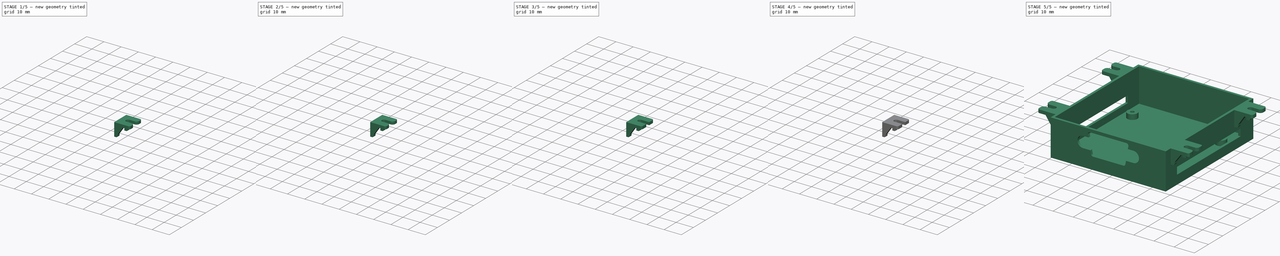
[diagram: build sequence overview — one tinted view per stage of 5, left to right]
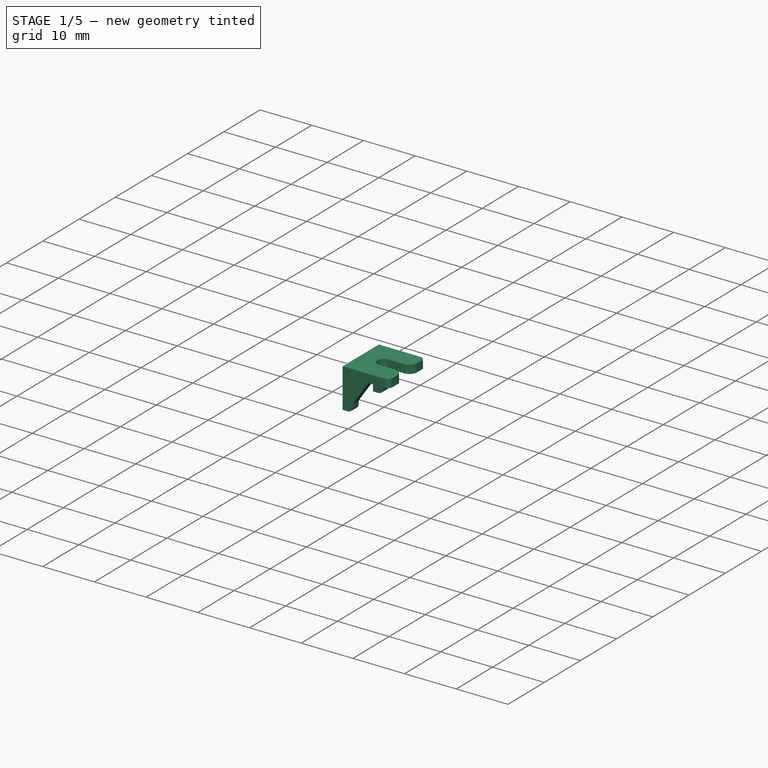
[diagram: stage 1 of 5 — iso view after this stage's code; geometry added in this stage tinted green]
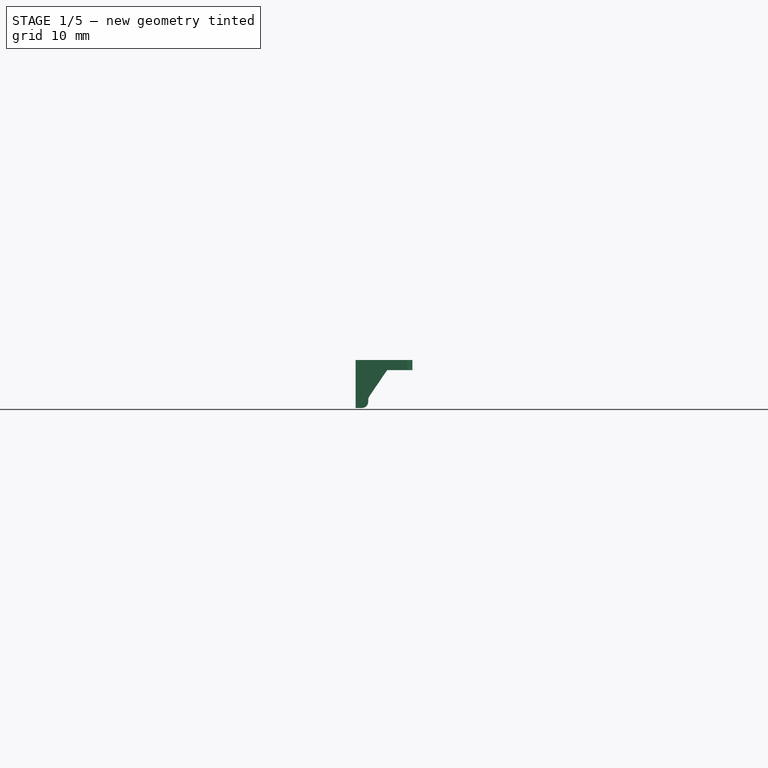
[diagram: stage 1 of 5 — front view after this stage's code; geometry added in this stage tinted green]
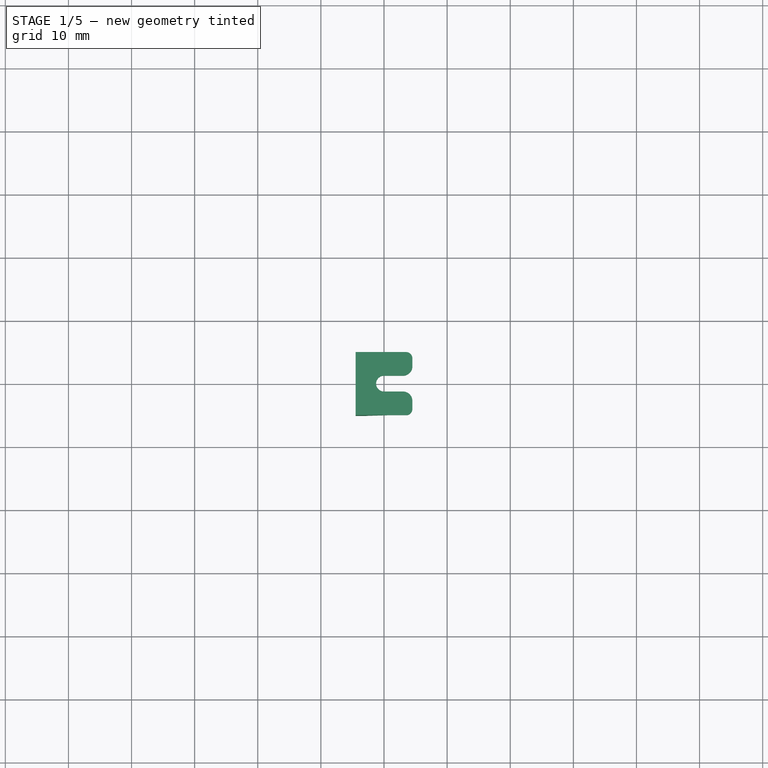
[diagram: stage 1 of 5 — top view after this stage's code; geometry added in this stage tinted green]
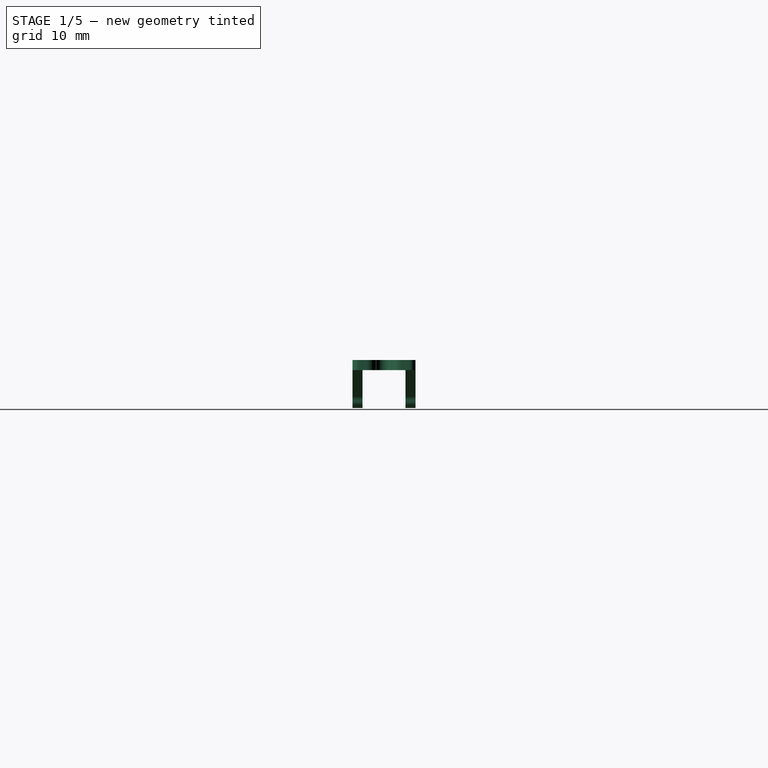
[diagram: stage 1 of 5 — right view after this stage's code; geometry added in this stage tinted green]
FCSTD DOCUMENT  (FreeCAD 0.20R29603 (Git))
Label: ControlBox_Stuffed
License: All rights reserved
LicenseURL: http://en.wikipedia.org/wiki/All_rights_reserved
objects: App::Link×55, Part::Feature×30, PartDesign::Fillet×16, Sketcher::SketchObject×14, PartDesign::Pad×10, PartDesign::Plane×7, App::Part×6, Spreadsheet::Sheet×5, PartDesign::Body×5, PartDesign::LinearPattern×4, PartDesign::Pocket×3, PartDesign::CoordinateSystem×1, PartDesign::SubShapeBinder×1, PartDesign::Boolean×1
note: 121 computed .brp shape members not serialized (recipe doc carries the construction recipe); baked Part::Feature solids carry a one-line shape summary decoded from their .brp

FEATURE [PartDesign::Body] Body003  label="Tab3"
  Group = -> [Sketch008,Pad006,DatumPlane004,Sketch009,Pad007,LinearPattern002,Fillet008,Fillet009,Fillet010,Fillet011]
  Origin = -> Origin011
  Placement = pos=(-33,22.5,16.4) rot=(0,0,1;3.14159rad)
  Tip = -> Fillet011
FEATURE [Spreadsheet::Sheet] Spreadsheet003  label="Params003"
  cells = A1=tab_insertion; B1(tab_insertion)=1; A2=tab_width; B2(tab_width)=10; A3=tab_length; B3(tab_length)=9; A4=tab_height; B4(tab_height)=6; A5=tab_thickness; B5(tab_thickness)=1.6; A6=tab_rib_length; B6(tab_rib_length)==B3 - 4; A7=tab_rib_height; B7(tab_rib_height)==B4 - B8; A8=tab_rib_thickness; B8(tab_rib_thickness)=1.6; A9=tab_hole_x; B9(tab_hole_x)==B3 / 2; A10=tab_hole_y; B10(tab_hole_y)=0; A11=tab_hole_diameter; B11(tab_hole_diameter)=2.5; A12=tab_rib_insert; B12(tab_rib_insert)==2 * B1; A13=tab_ribs_gap; B13(tab_ribs_gap)==B2 - B8
FEATURE [Sketcher::SketchObject] Sketch010
  FullyConstrained = true
  MapMode = 5
  Support = -> [XY_Plane012]
  expr: Constraints[13] = <<Params004>>.tab_length
  expr: Constraints[14] = <<Params004>>.tab_width
  expr: Constraints[19] = <<Params004>>.tab_hole_diameter
  expr: Constraints[20] = <<Params004>>.tab_hole_x
  sketch-geometry (8):
    g0: LineSegment StartX=-4.5 StartY=5 StartZ=0 EndX=4.5 EndY=5 EndZ=0
    g1: LineSegment StartX=4.5 StartY=5 StartZ=0 EndX=4.5 EndY=1.25 EndZ=0
    g2: LineSegment StartX=4.5 StartY=-5 StartZ=0 EndX=-4.5 EndY=-5 EndZ=0
    g3: LineSegment StartX=-4.5 StartY=-5 StartZ=0 EndX=-4.5 EndY=5 EndZ=0
    g4: ArcOfCircle CenterX=-3e-16 CenterY=0 CenterZ=0 NormalX=0 NormalY=0 NormalZ=1 AngleXU=0 Radius=1.25 StartAngle=1.5708 EndAngle=4.71239
    g5: LineSegment StartX=-5e-16 StartY=1.25 StartZ=0 EndX=4.5 EndY=1.25 EndZ=0
    g6: LineSegment StartX=4.5 StartY=-1.25 StartZ=0 EndX=-9e-16 EndY=-1.25 EndZ=0
    g7: LineSegment StartX=4.5 StartY=-1.25 StartZ=0 EndX=4.5 EndY=-5 EndZ=0
  constraints (21):
    c: Coincident(g0,g1)
    c: Coincident(g7,g2)
    c: Coincident(g2,g3)
    c: Coincident(g3,g0)
    c: Horizontal(g2)
    c: Vertical(g1)
    c: Symmetric(g0,g0,g-2)
    c: Symmetric(g0,g2,g-1)
    c: PointOnObject(g4,g-1)
    c: Horizontal(g5)
    c: Horizontal(g6)
    c: Coincident(g1,g5)
    c: Coincident(g7,g6)
    c: DistanceX(g0,g0) = 9
    c: DistanceY(g2,g0) = 10
    c: Tangent(g4,g5) = 1.5708
    c: Tangent(g6,g4) = 1.5708
    c: Vertical(g7)
    c: Vertical(g6,g1)
    c: Diameter(g4) = 2.5
    c: DistanceX(g0,g4) = 4.5
FEATURE [PartDesign::Pad] Pad008
  Direction = (0,0,1)
  Length = 1.6
  Length2 = 10
  Profile = -> Sketch010
  ReferenceAxis = -> Sketch010 [N_Axis]
  Type = 0
  expr: Length = <<Params004>>.tab_thickness
FEATURE [PartDesign::Plane] DatumPlane005  label="PlaneRib003"
  Length = 60
  MapMode = 5
  Placement = pos=(0,-5,0) rot=(1,0,0;1.5708rad)
  ResizeMode = 0
  Support = -> [Pad008]
  Width = 60
FEATURE [Sketcher::SketchObject] Sketch011
  ExternalGeometry = -> [Pad008]
  FullyConstrained = true
  MapMode = 5
  Placement = pos=(0,-5,0) rot=(1,0,0;1.5708rad)
  Support = -> [DatumPlane005]
  expr: Constraints[11] = <<Params004>>.tab_rib_height
  expr: Constraints[12] = <<Params004>>.tab_rib_length
  expr: Constraints[13] = <<Params004>>.tab_rib_insert
  expr: Constraints[6] = <<Params004>>.tab_height
  sketch-geometry (5):
    g0: LineSegment StartX=-4.5 StartY=0 StartZ=0 EndX=-4.5 EndY=-6 EndZ=0
    g1: LineSegment StartX=-4.5 StartY=-6 StartZ=0 EndX=-2.5 EndY=-6 EndZ=0
    g2: LineSegment StartX=0.5 StartY=0 StartZ=0 EndX=-4.5 EndY=0 EndZ=0
    g3: LineSegment StartX=-2.5 StartY=-6 StartZ=0 EndX=-2.5 EndY=-4.4 EndZ=0
    g4: LineSegment StartX=-2.5 StartY=-4.4 StartZ=0 EndX=0.5 EndY=0 EndZ=0
  constraints (14):
    c: Coincident(g0,g-3)
    c: Vertical(g0)
    c: Coincident(g1,g0)
    c: PointOnObject(g2,g-1)
    c: Coincident(g2,g0)
    c: Horizontal(g1)
    c: DistanceY(g0,g0) = 6
    c: Coincident(g3,g1)
    c: Vertical(g3)
    c: Coincident(g4,g3)
    c: Coincident(g4,g2)
    c: DistanceY(g3,g-1) = 4.4
    c: DistanceX(g0,g2) = 5
    c: DistanceX(g0,g1) = 2
FEATURE [PartDesign::Pad] Pad009  label="TabRib008"
  BaseFeature = -> Pad008
  Direction = (0,-1,2e-16)
  Length = 1.6
  Length2 = 10
  Profile = -> Sketch011
  ReferenceAxis = -> Sketch011 [N_Axis]
  Reversed = true
  Type = 0
  expr: Length = <<Params004>>.tab_rib_thickness
FEATURE [PartDesign::LinearPattern] LinearPattern003  label="TabRib007"
  BaseFeature = -> Pad009
  Direction = -> Y_Axis012
  Length = 8.4
  Occurrences = 2
  Originals = -> [Pad009]
  expr: Length = <<Params004>>.tab_ribs_gap
FEATURE [PartDesign::Fillet] Fillet012
  Base = -> LinearPattern003 [Edge51,Edge52]
  BaseFeature = -> LinearPattern003
  Radius = 1
  SupportTransform = false
  UseAllEdges = false
FEATURE [PartDesign::Fillet] Fillet013
  Base = -> Fillet012 [Edge14,Edge52]
  BaseFeature = -> Fillet012
  Radius = 1
  SupportTransform = false
  UseAllEdges = false
FEATURE [PartDesign::Fillet] Fillet014
  Base = -> Fillet013 [Edge19,Edge53]
  BaseFeature = -> Fillet013
  Radius = 1
  SupportTransform = false
  UseAllEdges = false
FEATURE [PartDesign::Fillet] Fillet015
  Base = -> Fillet014 [Edge38,Edge43]
  BaseFeature = -> Fillet014
  Radius = 1.5
  SupportTransform = false
  UseAllEdges = false
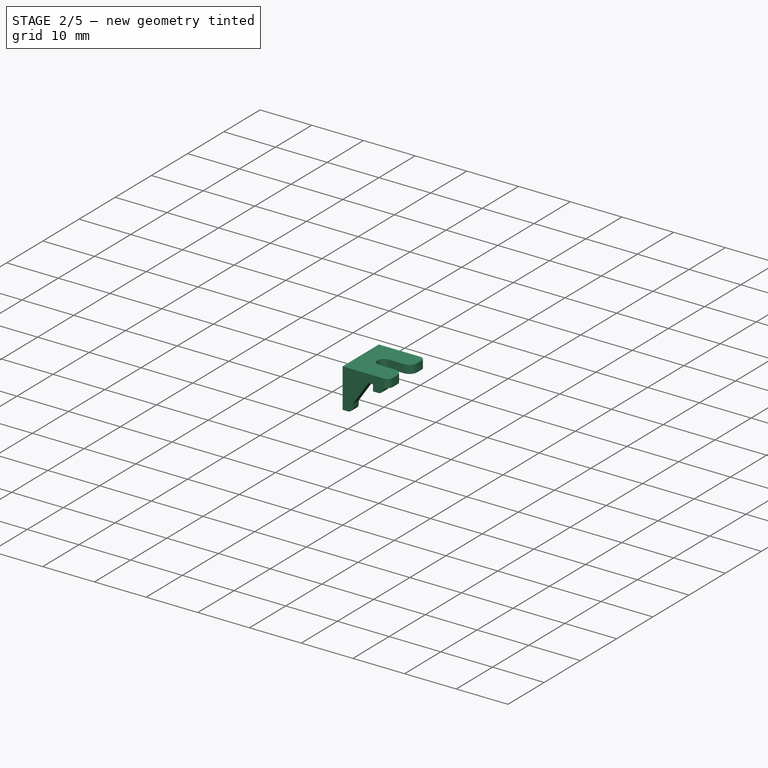
[diagram: stage 2 of 5 — iso view after this stage's code; geometry added in this stage tinted green]
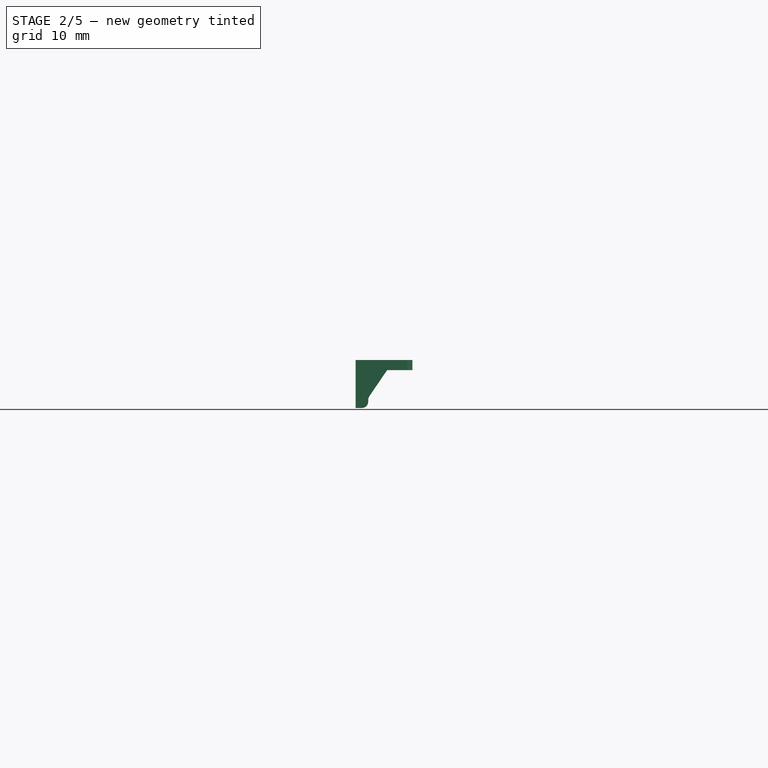
[diagram: stage 2 of 5 — front view after this stage's code; geometry added in this stage tinted green]
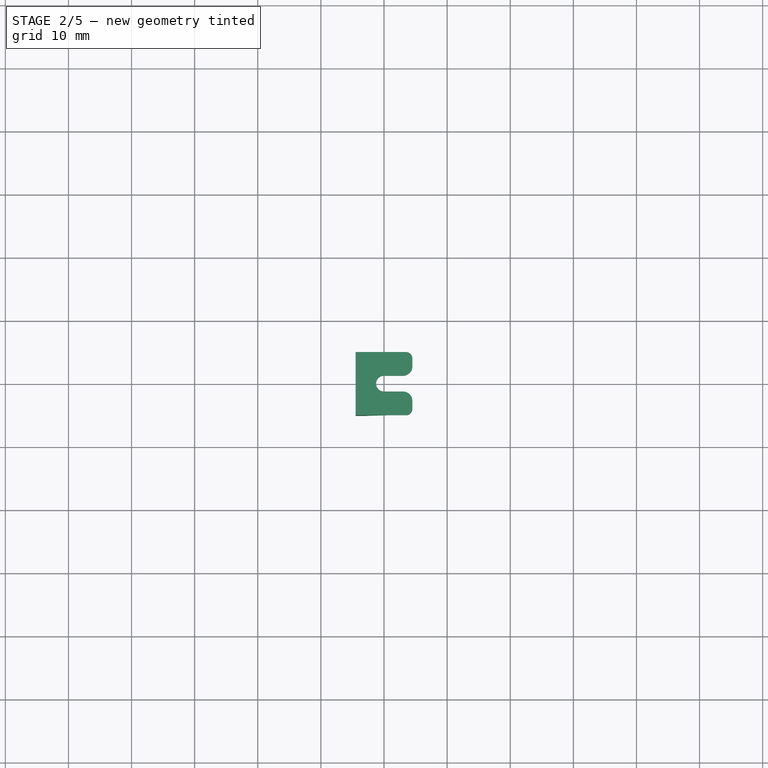
[diagram: stage 2 of 5 — top view after this stage's code; geometry added in this stage tinted green]
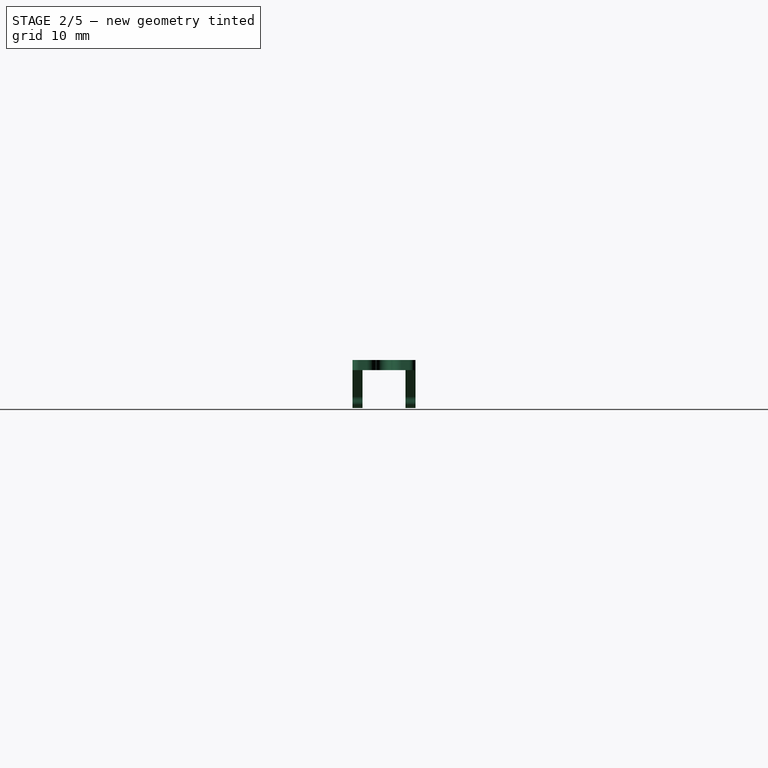
[diagram: stage 2 of 5 — right view after this stage's code; geometry added in this stage tinted green]
FEATURE [PartDesign::Body] Body002  label="Tab2"
  Group = -> [Sketch006,Pad004,DatumPlane003,Sketch007,Pad005,LinearPattern001,Fillet004,Fillet005,Fillet006,Fillet007]
  Origin = -> Origin010
  Placement = pos=(33,22.5,16.4) rot=(0,0,1;0rad)
  Tip = -> Fillet007
FEATURE [Spreadsheet::Sheet] Spreadsheet002  label="Params002"
  cells = A1=tab_insertion; B1(tab_insertion)=1; A2=tab_width; B2(tab_width)=10; A3=tab_length; B3(tab_length)=9; A4=tab_height; B4(tab_height)=6; A5=tab_thickness; B5(tab_thickness)=1.6; A6=tab_rib_length; B6(tab_rib_length)==B3 - 4; A7=tab_rib_height; B7(tab_rib_height)==B4 - B8; A8=tab_rib_thickness; B8(tab_rib_thickness)=1.6; A9=tab_hole_x; B9(tab_hole_x)==B3 / 2; A10=tab_hole_y; B10(tab_hole_y)=0; A11=tab_hole_diameter; B11(tab_hole_diameter)=2.4; A12=tab_rib_insert; B12(tab_rib_insert)==2 * B1; A13=tab_ribs_gap; B13(tab_ribs_gap)==B2 - B8
FEATURE [Sketcher::SketchObject] Sketch008
  FullyConstrained = true
  MapMode = 5
  Support = -> [XY_Plane011]
  expr: Constraints[13] = <<Params003>>.tab_length
  expr: Constraints[14] = <<Params003>>.tab_width
  expr: Constraints[19] = <<Params003>>.tab_hole_diameter
  expr: Constraints[20] = <<Params003>>.tab_hole_x
  sketch-geometry (8):
    g0: LineSegment StartX=-4.5 StartY=5 StartZ=0 EndX=4.5 EndY=5 EndZ=0
    g1: LineSegment StartX=4.5 StartY=5 StartZ=0 EndX=4.5 EndY=1.25 EndZ=0
    g2: LineSegment StartX=4.5 StartY=-5 StartZ=0 EndX=-4.5 EndY=-5 EndZ=0
    g3: LineSegment StartX=-4.5 StartY=-5 StartZ=0 EndX=-4.5 EndY=5 EndZ=0
    g4: ArcOfCircle CenterX=-1e-16 CenterY=0 CenterZ=0 NormalX=0 NormalY=0 NormalZ=1 AngleXU=0 Radius=1.25 StartAngle=1.5708 EndAngle=4.71239
    g5: LineSegment StartX=-3e-16 StartY=1.25 StartZ=0 EndX=4.5 EndY=1.25 EndZ=0
    g6: LineSegment StartX=4.5 StartY=-1.25 StartZ=0 EndX=0 EndY=-1.25 EndZ=0
    g7: LineSegment StartX=4.5 StartY=-1.25 StartZ=0 EndX=4.5 EndY=-5 EndZ=0
  constraints (21):
    c: Coincident(g0,g1)
    c: Coincident(g7,g2)
    c: Coincident(g2,g3)
    c: Coincident(g3,g0)
    c: Horizontal(g2)
    c: Vertical(g1)
    c: Symmetric(g0,g0,g-2)
    c: Symmetric(g0,g2,g-1)
    c: PointOnObject(g4,g-1)
    c: Horizontal(g5)
    c: Horizontal(g6)
    c: Coincident(g1,g5)
    c: Coincident(g7,g6)
    c: DistanceX(g0,g0) = 9
    c: DistanceY(g2,g0) = 10
    c: Tangent(g4,g5) = 1.5708
    c: Tangent(g6,g4) = 1.5708
    c: Vertical(g7)
    c: Vertical(g6,g1)
    c: Diameter(g4) = 2.5
    c: DistanceX(g0,g4) = 4.5
FEATURE [PartDesign::Pad] Pad006
  Direction = (0,0,1)
  Length = 1.6
  Length2 = 10
  Profile = -> Sketch008
  ReferenceAxis = -> Sketch008 [N_Axis]
  Type = 0
  expr: Length = <<Params003>>.tab_thickness
FEATURE [PartDesign::Plane] DatumPlane004  label="PlaneRib002"
  Length = 60
  MapMode = 5
  Placement = pos=(0,-5,0) rot=(1,0,0;1.5708rad)
  ResizeMode = 0
  Support = -> [Pad006]
  Width = 60
FEATURE [Sketcher::SketchObject] Sketch009
  ExternalGeometry = -> [Pad006]
  FullyConstrained = true
  MapMode = 5
  Placement = pos=(0,-5,0) rot=(1,0,0;1.5708rad)
  Support = -> [DatumPlane004]
  expr: Constraints[11] = <<Params003>>.tab_rib_height
  expr: Constraints[12] = <<Params003>>.tab_rib_length
  expr: Constraints[13] = <<Params003>>.tab_rib_insert
  expr: Constraints[6] = <<Params003>>.tab_height
  sketch-geometry (5):
    g0: LineSegment StartX=-4.5 StartY=0 StartZ=0 EndX=-4.5 EndY=-6 EndZ=0
    g1: LineSegment StartX=-4.5 StartY=-6 StartZ=0 EndX=-2.5 EndY=-6 EndZ=0
    g2: LineSegment StartX=0.5 StartY=0 StartZ=0 EndX=-4.5 EndY=0 EndZ=0
    g3: LineSegment StartX=-2.5 StartY=-6 StartZ=0 EndX=-2.5 EndY=-4.4 EndZ=0
    g4: LineSegment StartX=-2.5 StartY=-4.4 StartZ=0 EndX=0.5 EndY=0 EndZ=0
  constraints (14):
    c: Coincident(g0,g-3)
    c: Vertical(g0)
    c: Coincident(g1,g0)
    c: PointOnObject(g2,g-1)
    c: Coincident(g2,g0)
    c: Horizontal(g1)
    c: DistanceY(g0,g0) = 6
    c: Coincident(g3,g1)
    c: Vertical(g3)
    c: Coincident(g4,g3)
    c: Coincident(g4,g2)
    c: DistanceY(g3,g-1) = 4.4
    c: DistanceX(g0,g2) = 5
    c: DistanceX(g0,g1) = 2
FEATURE [PartDesign::Pad] Pad007  label="TabRib006"
  BaseFeature = -> Pad006
  Direction = (0,-1,2e-16)
  Length = 1.6
  Length2 = 10
  Profile = -> Sketch009
  ReferenceAxis = -> Sketch009 [N_Axis]
  Reversed = true
  Type = 0
  expr: Length = <<Params003>>.tab_rib_thickness
FEATURE [PartDesign::LinearPattern] LinearPattern002  label="TabRib005"
  BaseFeature = -> Pad007
  Direction = -> Y_Axis011
  Length = 8.4
  Occurrences = 2
  Originals = -> [Pad007]
  expr: Length = <<Params003>>.tab_ribs_gap
FEATURE [PartDesign::Fillet] Fillet008
  Base = -> LinearPattern002 [Edge51,Edge52]
  BaseFeature = -> LinearPattern002
  Radius = 1
  SupportTransform = false
  UseAllEdges = false
FEATURE [PartDesign::Fillet] Fillet009
  Base = -> Fillet008 [Edge14,Edge52]
  BaseFeature = -> Fillet008
  Radius = 1
  SupportTransform = false
  UseAllEdges = false
FEATURE [PartDesign::Fillet] Fillet010
  Base = -> Fillet009 [Edge19,Edge53]
  BaseFeature = -> Fillet009
  Radius = 1
  SupportTransform = false
  UseAllEdges = false
FEATURE [PartDesign::Fillet] Fillet011
  Base = -> Fillet010 [Edge38,Edge43]
  BaseFeature = -> Fillet010
  Radius = 1.5
  SupportTransform = false
  UseAllEdges = false
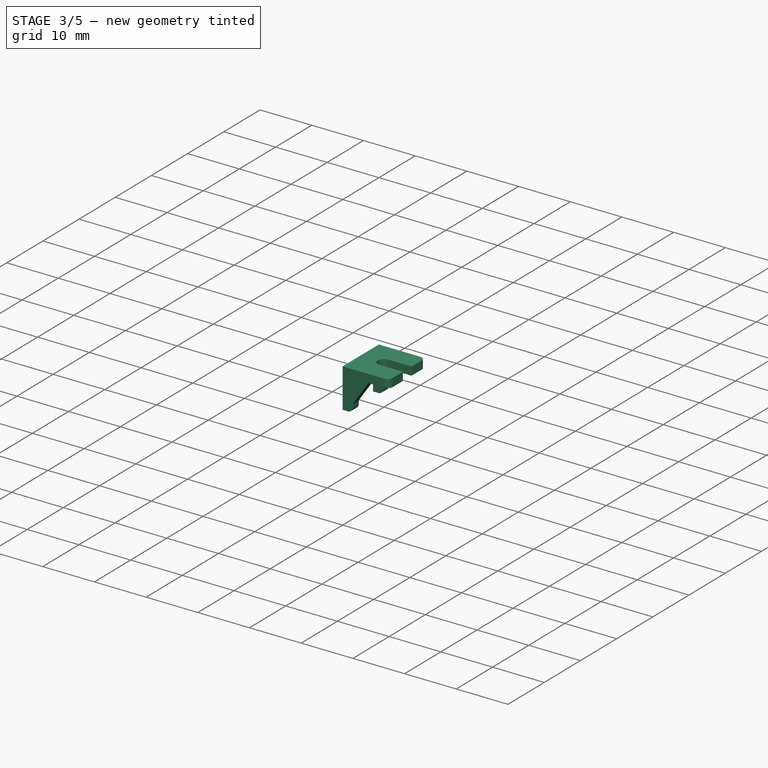
[diagram: stage 3 of 5 — iso view after this stage's code; geometry added in this stage tinted green]
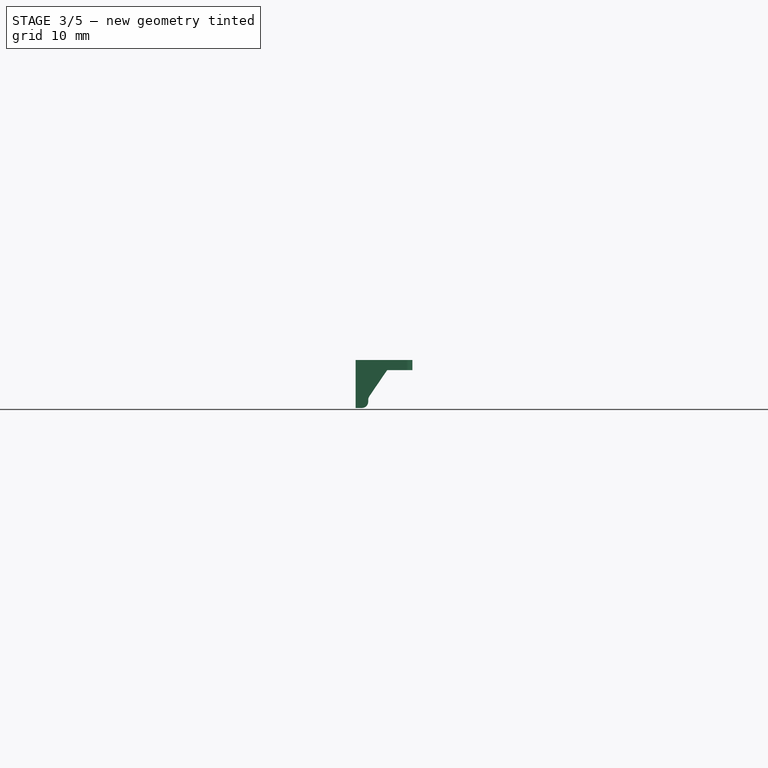
[diagram: stage 3 of 5 — front view after this stage's code; geometry added in this stage tinted green]
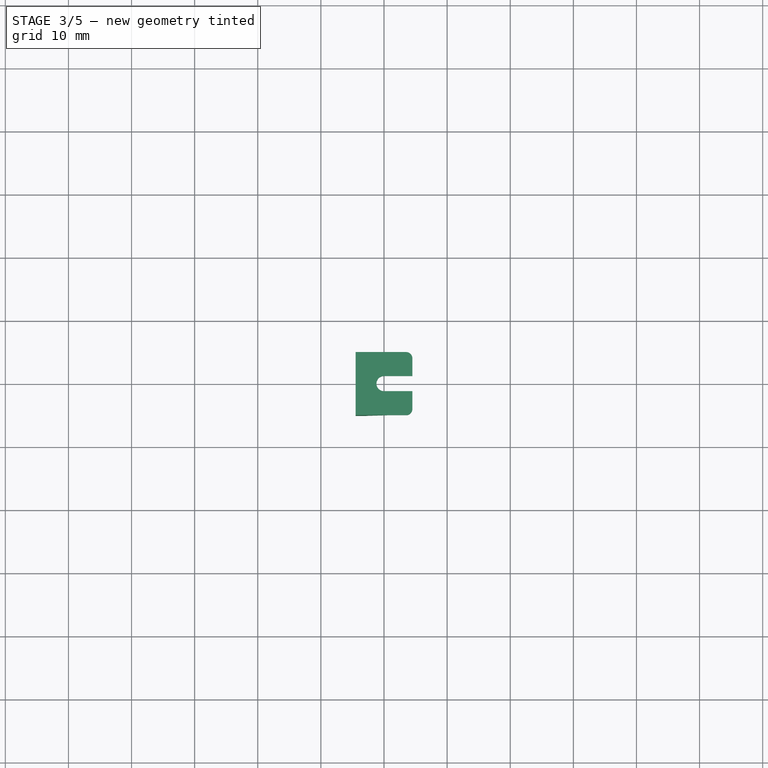
[diagram: stage 3 of 5 — top view after this stage's code; geometry added in this stage tinted green]
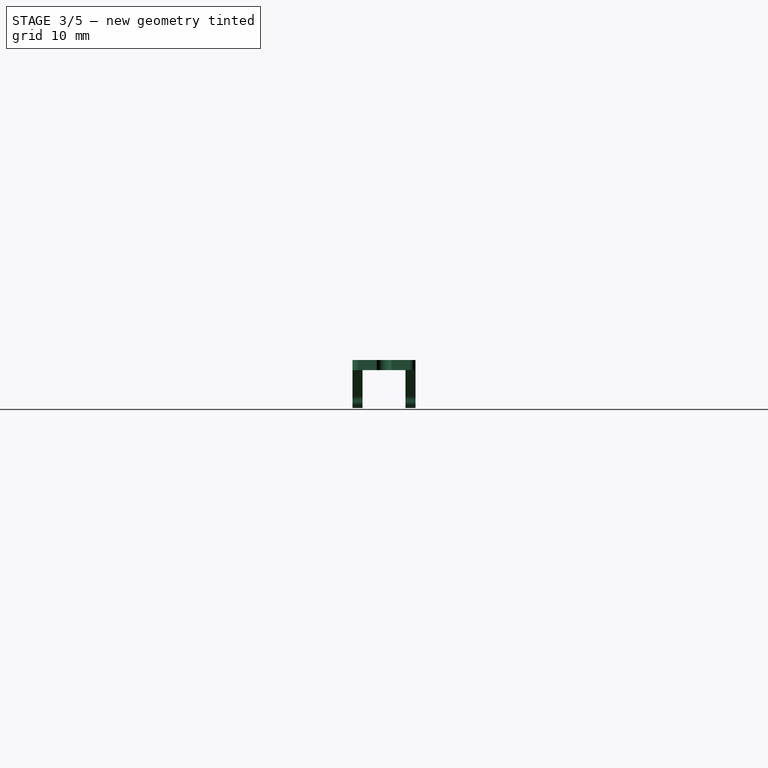
[diagram: stage 3 of 5 — right view after this stage's code; geometry added in this stage tinted green]
FEATURE [PartDesign::Body] Body001  label="Tab1"
  Group = -> [Sketch004,Pad002,DatumPlane002,Sketch005,Pad003,LinearPattern,Fillet,Fillet001,Fillet002,Fillet003]
  Origin = -> Origin009
  Placement = pos=(33,-22.5,16.4) rot=(0,0,1;0rad)
  Tip = -> Fillet003
FEATURE [Spreadsheet::Sheet] Spreadsheet001  label="Params001"
  cells = A1=tab_insertion; B1(tab_insertion)=1; A2=tab_width; B2(tab_width)=10; A3=tab_length; B3(tab_length)=9; A4=tab_height; B4(tab_height)=5.6; A5=tab_thickness; B5(tab_thickness)=1.6; A6=tab_rib_length; B6(tab_rib_length)==B3 - 4; A7=tab_rib_height; B7(tab_rib_height)==B4 - B8; A8=tab_rib_thickness; B8(tab_rib_thickness)=1.6; A9=tab_hole_x; B9(tab_hole_x)==B3 / 2; A10=tab_hole_y; B10(tab_hole_y)=0; A11=tab_hole_diameter; B11(tab_hole_diameter)=2.5; A12=tab_rib_insert; B12(tab_rib_insert)==2 * B1; A13=tab_ribs_gap; B13(tab_ribs_gap)==B2 - B8
FEATURE [Sketcher::SketchObject] Sketch006
  FullyConstrained = true
  MapMode = 5
  Support = -> [XY_Plane010]
  expr: Constraints[13] = <<Params002>>.tab_length
  expr: Constraints[14] = <<Params002>>.tab_width
  expr: Constraints[19] = <<Params002>>.tab_hole_diameter
  expr: Constraints[20] = <<Params002>>.tab_hole_x
  sketch-geometry (8):
    g0: LineSegment StartX=-4.5 StartY=5 StartZ=0 EndX=4.5 EndY=5 EndZ=0
    g1: LineSegment StartX=4.5 StartY=5 StartZ=0 EndX=4.5 EndY=1.2 EndZ=0
    g2: LineSegment StartX=4.5 StartY=-5 StartZ=0 EndX=-4.5 EndY=-5 EndZ=0
    g3: LineSegment StartX=-4.5 StartY=-5 StartZ=0 EndX=-4.5 EndY=5 EndZ=0
    g4: ArcOfCircle CenterX=-3e-16 CenterY=0 CenterZ=0 NormalX=0 NormalY=0 NormalZ=1 AngleXU=0 Radius=1.2 StartAngle=1.5708 EndAngle=4.71239
    g5: LineSegment StartX=-5e-16 StartY=1.2 StartZ=0 EndX=4.5 EndY=1.2 EndZ=0
    g6: LineSegment StartX=4.5 StartY=-1.2 StartZ=0 EndX=-9e-16 EndY=-1.2 EndZ=0
    g7: LineSegment StartX=4.5 StartY=-1.2 StartZ=0 EndX=4.5 EndY=-5 EndZ=0
  constraints (21):
    c: Coincident(g0,g1)
    c: Coincident(g7,g2)
    c: Coincident(g2,g3)
    c: Coincident(g3,g0)
    c: Horizontal(g2)
    c: Vertical(g1)
    c: Symmetric(g0,g0,g-2)
    c: Symmetric(g0,g2,g-1)
    c: PointOnObject(g4,g-1)
    c: Horizontal(g5)
    c: Horizontal(g6)
    c: Coincident(g1,g5)
    c: Coincident(g7,g6)
    c: DistanceX(g0,g0) = 9
    c: DistanceY(g2,g0) = 10
    c: Tangent(g4,g5) = 1.5708
    c: Tangent(g6,g4) = 1.5708
    c: Vertical(g7)
    c: Vertical(g6,g1)
    c: Diameter(g4) = 2.4
    c: DistanceX(g0,g4) = 4.5
FEATURE [PartDesign::Pad] Pad004
  Direction = (0,0,1)
  Length = 1.6
  Length2 = 10
  Profile = -> Sketch006
  ReferenceAxis = -> Sketch006 [N_Axis]
  Type = 0
  expr: Length = <<Params002>>.tab_thickness
FEATURE [PartDesign::Plane] DatumPlane003  label="PlaneRib001"
  Length = 60
  MapMode = 5
  Placement = pos=(0,-5,0) rot=(1,0,0;1.5708rad)
  ResizeMode = 0
  Support = -> [Pad004]
  Width = 60
FEATURE [Sketcher::SketchObject] Sketch007
  ExternalGeometry = -> [Pad004]
  FullyConstrained = true
  MapMode = 5
  Placement = pos=(0,-5,0) rot=(1,0,0;1.5708rad)
  Support = -> [DatumPlane003]
  expr: Constraints[11] = <<Params002>>.tab_rib_height
  expr: Constraints[12] = <<Params002>>.tab_rib_length
  expr: Constraints[13] = <<Params002>>.tab_rib_insert
  expr: Constraints[6] = <<Params002>>.tab_height
  sketch-geometry (5):
    g0: LineSegment StartX=-4.5 StartY=0 StartZ=0 EndX=-4.5 EndY=-6 EndZ=0
    g1: LineSegment StartX=-4.5 StartY=-6 StartZ=0 EndX=-2.5 EndY=-6 EndZ=0
    g2: LineSegment StartX=0.5 StartY=0 StartZ=0 EndX=-4.5 EndY=0 EndZ=0
    g3: LineSegment StartX=-2.5 StartY=-6 StartZ=0 EndX=-2.5 EndY=-4.4 EndZ=0
    g4: LineSegment StartX=-2.5 StartY=-4.4 StartZ=0 EndX=0.5 EndY=0 EndZ=0
  constraints (14):
    c: Coincident(g0,g-3)
    c: Vertical(g0)
    c: Coincident(g1,g0)
    c: PointOnObject(g2,g-1)
    c: Coincident(g2,g0)
    c: Horizontal(g1)
    c: DistanceY(g0,g0) = 6
    c: Coincident(g3,g1)
    c: Vertical(g3)
    c: Coincident(g4,g3)
    c: Coincident(g4,g2)
    c: DistanceY(g3,g-1) = 4.4
    c: DistanceX(g0,g2) = 5
    c: DistanceX(g0,g1) = 2
FEATURE [PartDesign::Pad] Pad005  label="TabRib004"
  BaseFeature = -> Pad004
  Direction = (0,-1,2e-16)
  Length = 1.6
  Length2 = 10
  Profile = -> Sketch007
  ReferenceAxis = -> Sketch007 [N_Axis]
  Reversed = true
  Type = 0
  expr: Length = <<Params002>>.tab_rib_thickness
FEATURE [PartDesign::LinearPattern] LinearPattern001  label="TabRib003"
  BaseFeature = -> Pad005
  Direction = -> Y_Axis010
  Length = 8.4
  Occurrences = 2
  Originals = -> [Pad005]
  expr: Length = <<Params002>>.tab_ribs_gap
FEATURE [PartDesign::Fillet] Fillet004
  Base = -> LinearPattern001 [Edge51,Edge52]
  BaseFeature = -> LinearPattern001
  Radius = 1
  SupportTransform = false
  UseAllEdges = false
FEATURE [PartDesign::Fillet] Fillet005
  Base = -> Fillet004 [Edge14,Edge52]
  BaseFeature = -> Fillet004
  Radius = 1
  SupportTransform = false
  UseAllEdges = false
FEATURE [PartDesign::Fillet] Fillet006
  Base = -> Fillet005 [Edge19,Edge53]
  BaseFeature = -> Fillet005
  Radius = 1
  SupportTransform = false
  UseAllEdges = false
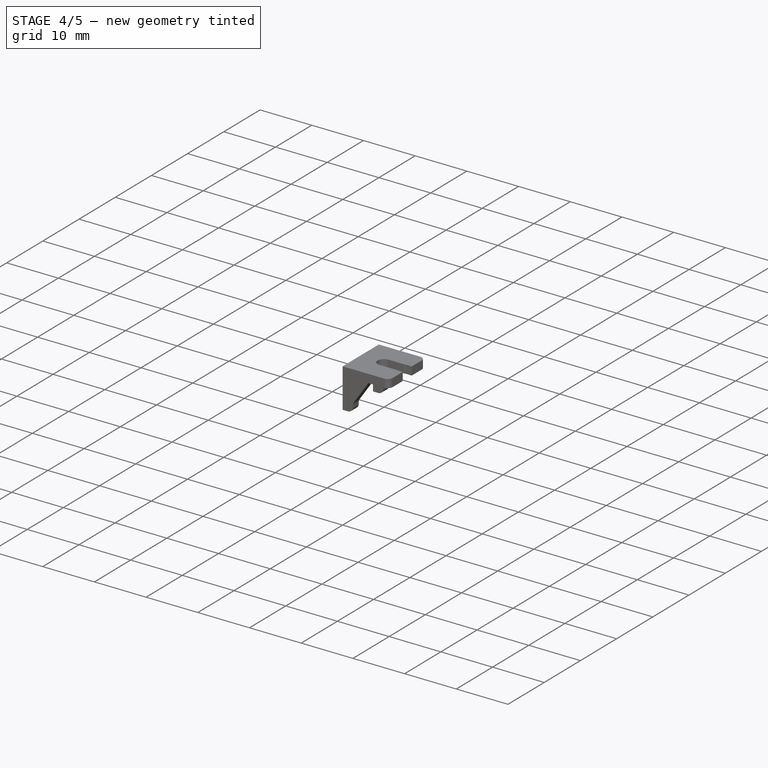
[diagram: stage 4 of 5 — iso view after this stage's code; geometry added in this stage tinted green]
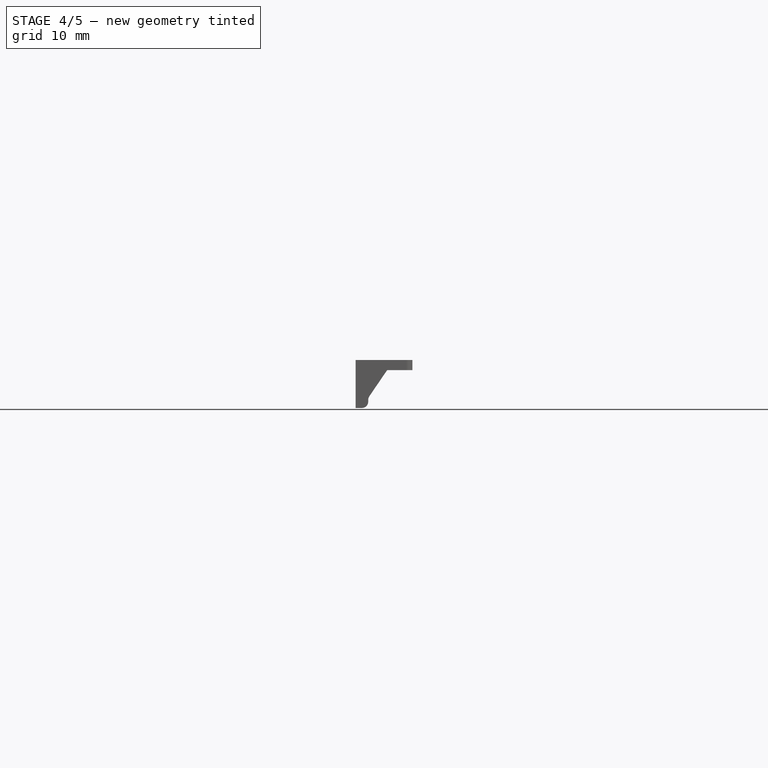
[diagram: stage 4 of 5 — front view after this stage's code; geometry added in this stage tinted green]
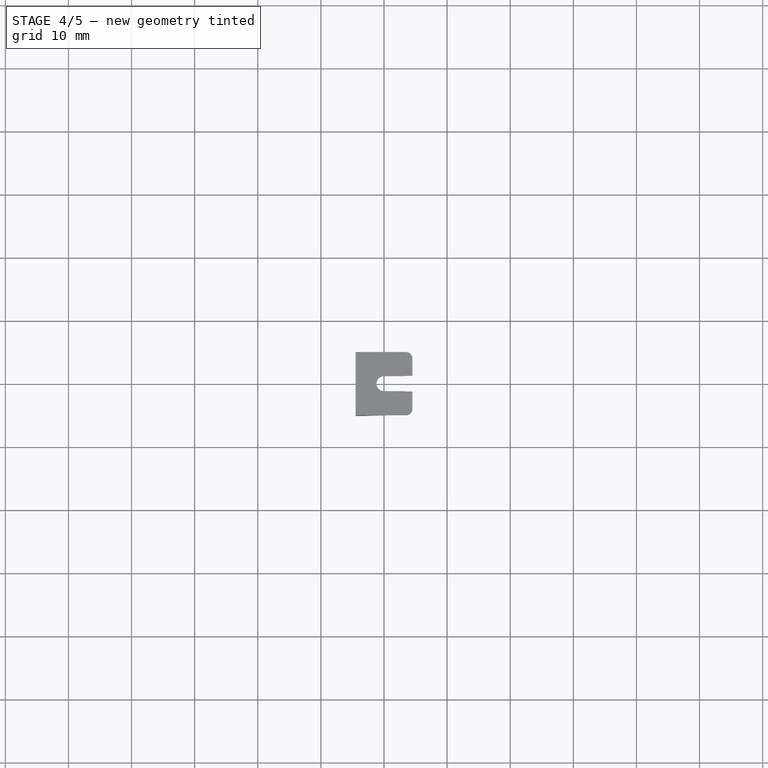
[diagram: stage 4 of 5 — top view after this stage's code; geometry added in this stage tinted green]
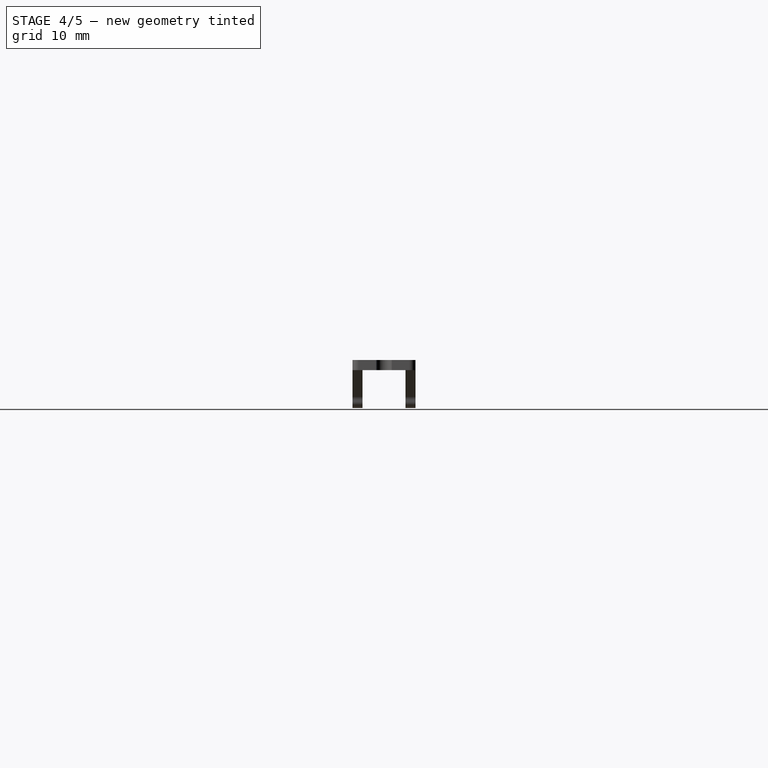
[diagram: stage 4 of 5 — right view after this stage's code; geometry added in this stage tinted green]
FEATURE [Sketcher::SketchObject] Sketch004
  FullyConstrained = true
  MapMode = 5
  Support = -> [XY_Plane009]
  expr: Constraints[13] = <<Params001>>.tab_length
  expr: Constraints[14] = <<Params001>>.tab_width
  expr: Constraints[19] = <<Params001>>.tab_hole_diameter
  expr: Constraints[20] = <<Params001>>.tab_hole_x
  sketch-geometry (8):
    g0: LineSegment StartX=-4.5 StartY=5 StartZ=0 EndX=4.5 EndY=5 EndZ=0
    g1: LineSegment StartX=4.5 StartY=5 StartZ=0 EndX=4.5 EndY=1.25 EndZ=0
    g2: LineSegment StartX=4.5 StartY=-5 StartZ=0 EndX=-4.5 EndY=-5 EndZ=0
    g3: LineSegment StartX=-4.5 StartY=-5 StartZ=0 EndX=-4.5 EndY=5 EndZ=0
    g4: ArcOfCircle CenterX=-1e-16 CenterY=0 CenterZ=0 NormalX=0 NormalY=0 NormalZ=1 AngleXU=0 Radius=1.25 StartAngle=1.5708 EndAngle=4.71239
    g5: LineSegment StartX=-3e-16 StartY=1.25 StartZ=0 EndX=4.5 EndY=1.25 EndZ=0
    g6: LineSegment StartX=4.5 StartY=-1.25 StartZ=0 EndX=0 EndY=-1.25 EndZ=0
    g7: LineSegment StartX=4.5 StartY=-1.25 StartZ=0 EndX=4.5 EndY=-5 EndZ=0
  constraints (21):
    c: Coincident(g0,g1)
    c: Coincident(g7,g2)
    c: Coincident(g2,g3)
    c: Coincident(g3,g0)
    c: Horizontal(g2)
    c: Vertical(g1)
    c: Symmetric(g0,g0,g-2)
    c: Symmetric(g0,g2,g-1)
    c: PointOnObject(g4,g-1)
    c: Horizontal(g5)
    c: Horizontal(g6)
    c: Coincident(g1,g5)
    c: Coincident(g7,g6)
    c: DistanceX(g0,g0) = 9
    c: DistanceY(g2,g0) = 10
    c: Tangent(g4,g5) = 1.5708
    c: Tangent(g6,g4) = 1.5708
    c: Vertical(g7)
    c: Vertical(g6,g1)
    c: Diameter(g4) = 2.5
    c: DistanceX(g0,g4) = 4.5
FEATURE [PartDesign::Pad] Pad002
  Direction = (0,0,1)
  Length = 1.6
  Length2 = 10
  Profile = -> Sketch004
  ReferenceAxis = -> Sketch004 [N_Axis]
  Type = 0
  expr: Length = <<Params001>>.tab_thickness
FEATURE [PartDesign::Plane] DatumPlane002  label="PlaneRib"
  Length = 60
  MapMode = 5
  Placement = pos=(0,-5,0) rot=(1,0,0;1.5708rad)
  ResizeMode = 0
  Support = -> [Pad002]
  Width = 60
FEATURE [Sketcher::SketchObject] Sketch005
  ExternalGeometry = -> [Pad002]
  FullyConstrained = true
  MapMode = 5
  Placement = pos=(0,-5,0) rot=(1,0,0;1.5708rad)
  Support = -> [DatumPlane002]
  expr: Constraints[11] = <<Params001>>.tab_rib_height
  expr: Constraints[12] = <<Params001>>.tab_rib_length
  expr: Constraints[13] = <<Params001>>.tab_rib_insert
  expr: Constraints[6] = <<Params001>>.tab_height
  sketch-geometry (5):
    g0: LineSegment StartX=-4.5 StartY=0 StartZ=0 EndX=-4.5 EndY=-5.6 EndZ=0
    g1: LineSegment StartX=-4.5 StartY=-5.6 StartZ=0 EndX=-2.5 EndY=-5.6 EndZ=0
    g2: LineSegment StartX=0.5 StartY=0 StartZ=0 EndX=-4.5 EndY=0 EndZ=0
    g3: LineSegment StartX=-2.5 StartY=-5.6 StartZ=0 EndX=-2.5 EndY=-4 EndZ=0
    g4: LineSegment StartX=-2.5 StartY=-4 StartZ=0 EndX=0.5 EndY=0 EndZ=0
  constraints (14):
    c: Coincident(g0,g-3)
    c: Vertical(g0)
    c: Coincident(g1,g0)
    c: PointOnObject(g2,g-1)
    c: Coincident(g2,g0)
    c: Horizontal(g1)
    c: DistanceY(g0,g0) = 5.6
    c: Coincident(g3,g1)
    c: Vertical(g3)
    c: Coincident(g4,g3)
    c: Coincident(g4,g2)
    c: DistanceY(g3,g-1) = 4
    c: DistanceX(g0,g2) = 5
    c: DistanceX(g0,g1) = 2
FEATURE [PartDesign::Pad] Pad003  label="TabRib1"
  BaseFeature = -> Pad002
  Direction = (0,-1,2e-16)
  Length = 1.6
  Length2 = 10
  Profile = -> Sketch005
  ReferenceAxis = -> Sketch005 [N_Axis]
  Reversed = true
  Type = 0
  expr: Length = <<Params001>>.tab_rib_thickness
FEATURE [PartDesign::LinearPattern] LinearPattern  label="TabRib2"
  BaseFeature = -> Pad003
  Direction = -> Y_Axis009
  Length = 8.4
  Occurrences = 2
  Originals = -> [Pad003]
  expr: Length = <<Params001>>.tab_ribs_gap
FEATURE [PartDesign::Fillet] Fillet
  Base = -> LinearPattern [Edge51,Edge52]
  BaseFeature = -> LinearPattern
  Radius = 1
  SupportTransform = false
  UseAllEdges = false
FEATURE [PartDesign::Fillet] Fillet001
  Base = -> Fillet [Edge14,Edge52]
  BaseFeature = -> Fillet
  Radius = 1
  SupportTransform = false
  UseAllEdges = false
FEATURE [PartDesign::Fillet] Fillet002
  Base = -> Fillet001 [Edge19,Edge53]
  BaseFeature = -> Fillet001
  Radius = 1
  SupportTransform = false
  UseAllEdges = false
FEATURE [PartDesign::Fillet] Fillet007
  Base = -> Fillet006 [Edge38,Edge43]
  BaseFeature = -> Fillet006
  Radius = 1.5
  SupportTransform = false
  UseAllEdges = false
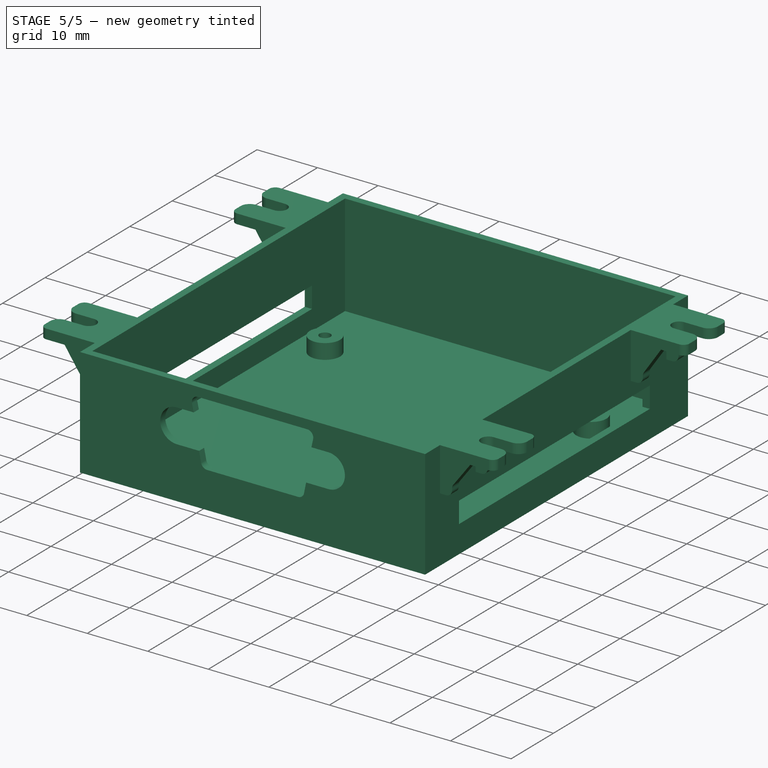
[diagram: stage 5 of 5 — iso view after this stage's code; geometry added in this stage tinted green]
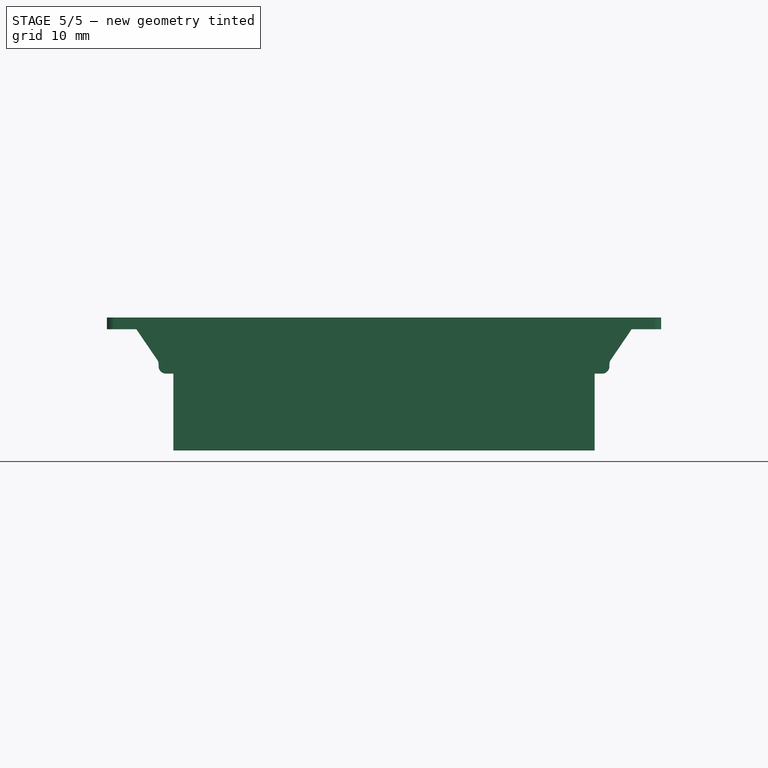
[diagram: stage 5 of 5 — front view after this stage's code; geometry added in this stage tinted green]
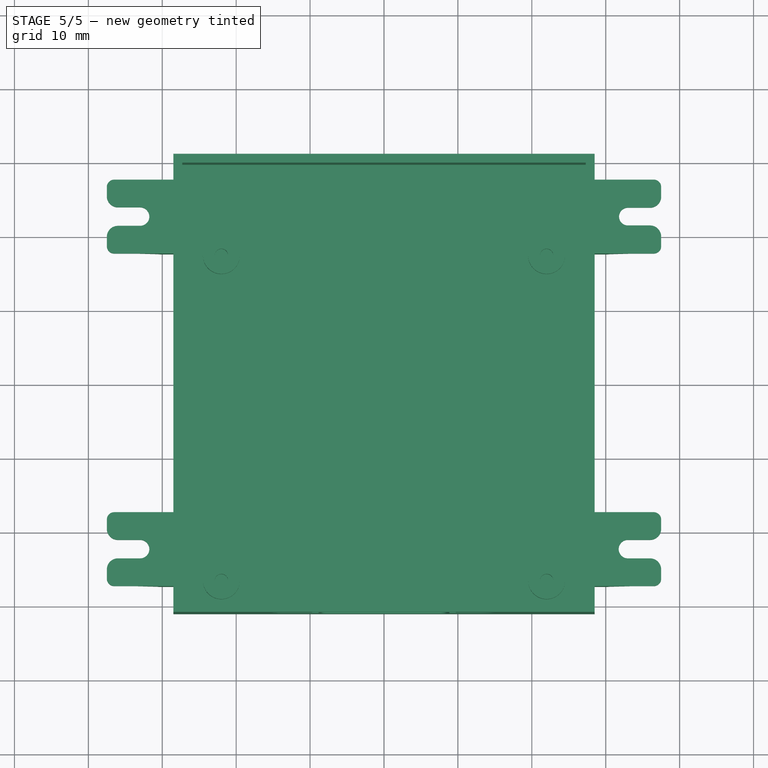
[diagram: stage 5 of 5 — top view after this stage's code; geometry added in this stage tinted green]
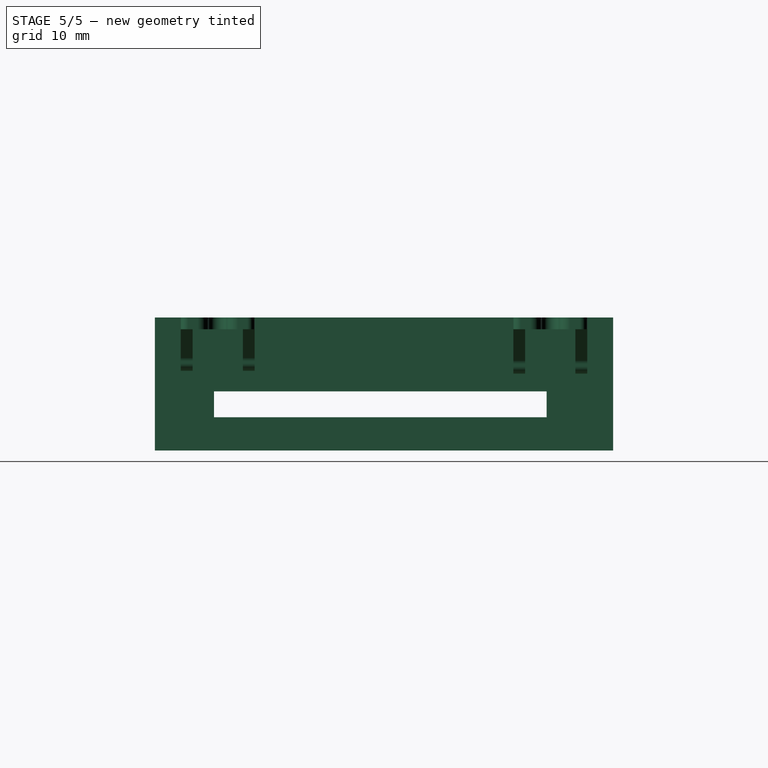
[diagram: stage 5 of 5 — right view after this stage's code; geometry added in this stage tinted green]
FEATURE [Sketcher::SketchObject] Sketch
  FullyConstrained = true
  MapMode = 5
  Support = -> [XY_Plane]
  expr: Constraints[8] = <<Params>>.box_width_external
  expr: Constraints[9] = <<Params>>.box_length_external
  sketch-geometry (4):
    g0: LineSegment StartX=-28.5 StartY=31 StartZ=0 EndX=28.5 EndY=31 EndZ=0
    g1: LineSegment StartX=28.5 StartY=31 StartZ=0 EndX=28.5 EndY=-31 EndZ=0
    g2: LineSegment StartX=28.5 StartY=-31 StartZ=0 EndX=-28.5 EndY=-31 EndZ=0
    g3: LineSegment StartX=-28.5 StartY=-31 StartZ=0 EndX=-28.5 EndY=31 EndZ=0
  constraints (10):
    c: Coincident(g0,g1)
    c: Coincident(g1,g2)
    c: Coincident(g2,g3)
    c: Coincident(g3,g0)
    c: Horizontal(g2)
    c: Vertical(g3)
    c: Symmetric(g0,g1,g-1)
    c: Symmetric(g0,g0,g-2)
    c: DistanceY(g2,g0) = 62
    c: DistanceX(g0,g0) = 57
FEATURE [Spreadsheet::Sheet] Spreadsheet  label="Params"
  cells = A2=box_length_external; B2(box_length_external)=57; A3=box_width_external; B3(box_width_external)=62; A4=box_wall_thickness; B4(box_wall_thickness)=1.2; A5=box_length_internal; B5(box_length_internal)==B2 - 2 * B4; A6=box_width_internal; B6(box_width_internal)==B3 - 2 * B4; A7=box_height; B7(box_height)=18; A8=box_depth; B8(box_depth)==B7 - B4; A9=side_window_length; B9(side_window_length)=45; A10=side_window_height; B10(side_window_height)=3.5; A11=side_window_y; B11(side_window_y)=23; A12=side_window_z; B12(side_window_z)=4.5
FEATURE [PartDesign::Pad] Pad  label="BoxSkin"
  Direction = (0,0,1)
  Length = 18
  Length2 = 10
  Profile = -> Sketch
  ReferenceAxis = -> Sketch [N_Axis]
  Type = 0
  expr: Length = <<Params>>.box_height
FEATURE [PartDesign::Plane] DatumPlane  label="PlaneCavity"
  Length = 88.6382
  MapMode = 5
  Placement = pos=(0,0,18) rot=(0,0,1;0rad)
  ResizeMode = 0
  Support = -> [Pad]
  Width = 75.6382
FEATURE [Sketcher::SketchObject] Sketch001
  FullyConstrained = true
  MapMode = 5
  Placement = pos=(0,0,18) rot=(0,0,1;0rad)
  Support = -> [DatumPlane]
  expr: Constraints[8] = <<Params>>.box_length_internal
  expr: Constraints[9] = <<Params>>.box_width_internal
  sketch-geometry (4):
    g0: LineSegment StartX=-27.3 StartY=29.8 StartZ=0 EndX=27.3 EndY=29.8 EndZ=0
    g1: LineSegment StartX=27.3 StartY=29.8 StartZ=0 EndX=27.3 EndY=-29.8 EndZ=0
    g2: LineSegment StartX=27.3 StartY=-29.8 StartZ=0 EndX=-27.3 EndY=-29.8 EndZ=0
    g3: LineSegment StartX=-27.3 StartY=-29.8 StartZ=0 EndX=-27.3 EndY=29.8 EndZ=0
  constraints (10):
    c: Coincident(g0,g1)
    c: Coincident(g1,g2)
    c: Coincident(g2,g3)
    c: Coincident(g3,g0)
    c: Horizontal(g2)
    c: Vertical(g1)
    c: Symmetric(g0,g0,g-2)
    c: Symmetric(g0,g2,g-1)
    c: DistanceX(g0,g0) = 54.6
    c: DistanceY(g2,g0) = 59.6
FEATURE [PartDesign::Pocket] Pocket  label="Cavity"
  BaseFeature = -> Pad
  Direction = (0,0,-1)
  Length = 16.8
  Length2 = 5
  Profile = -> Sketch001
  ReferenceAxis = -> Sketch001 [N_Axis]
  Type = 0
  expr: Length = <<Params>>.box_depth
FEATURE [App::Link] C11_C_0805_2012Metric_1688cc946903_ln_  label="C2_C_0805_2012Metric_3e8ded921b53"
  LinkPlacement = pos=(139.75,-69.5,0) rot=(0,0,-1;1.5708rad)
  LinkedObject = -> Shape009
  Placement = pos=(139.75,-69.5,0) rot=(0,0,-1;1.5708rad)
FEATURE [App::Link] C23_C_0603_1608Metric_67e658bcb3e9_ln_  label="C17_C_0603_1608Metric_e9f00e3af137"
  LinkPlacement = pos=(168.4,-77.2,0) rot=(0,0,-1;1.5708rad)
  LinkedObject = -> Shape001
  Placement = pos=(168.4,-77.2,0) rot=(0,0,-1;1.5708rad)
FEATURE [App::Link] C23_C_0603_1608Metric_67e658bcb3e9_ln_001  label="C24_C_0603_1608Metric_34b0098a20eb"
  LinkPlacement = pos=(131.6,-74.4,0) rot=(0,0,1;1.5708rad)
  LinkedObject = -> Shape001
  Placement = pos=(131.6,-74.4,0) rot=(0,0,1;1.5708rad)
FEATURE [App::Link] C23_C_0603_1608Metric_67e658bcb3e9_ln_002  label="C9_C_0603_1608Metric_85e27d3c77db"
  LinkPlacement = pos=(139.1,-76.55,0) rot=(0,0,1;3.14159rad)
  LinkedObject = -> Shape001
  Placement = pos=(139.1,-76.55,0) rot=(0,0,1;3.14159rad)
FEATURE [App::Link] C23_C_0603_1608Metric_67e658bcb3e9_ln_003  label="C19_C_0603_1608Metric_8a213d718a65"
  LinkPlacement = pos=(168.4,-95.6,0) rot=(0,0,-1;1.5708rad)
  LinkedObject = -> Shape001
  Placement = pos=(168.4,-95.6,0) rot=(0,0,-1;1.5708rad)
FEATURE [App::Link] C23_C_0603_1608Metric_67e658bcb3e9_ln_004  label="C6_C_0603_1608Metric_23fe59c1562e"
  LinkPlacement = pos=(135.8,-79.5,0) rot=(0,0,1;1.5708rad)
  LinkedObject = -> Shape001
  Placement = pos=(135.8,-79.5,0) rot=(0,0,1;1.5708rad)
FEATURE [App::Link] C23_C_0603_1608Metric_67e658bcb3e9_ln_005  label="C18_C_0603_1608Metric_4ebd43163757"
  LinkPlacement = pos=(168.4,-86.2,0) rot=(0,0,-1;1.5708rad)
  LinkedObject = -> Shape001
  Placement = pos=(168.4,-86.2,0) rot=(0,0,-1;1.5708rad)
FEATURE [App::Link] C23_C_0603_1608Metric_67e658bcb3e9_ln_006  label="C21_C_0603_1608Metric_43905a34d840"
  LinkPlacement = pos=(131.575,-103,0) rot=(0,0,1;1.5708rad)
  LinkedObject = -> Shape001
  Placement = pos=(131.575,-103,0) rot=(0,0,1;1.5708rad)
FEATURE [App::Link] C23_C_0603_1608Metric_67e658bcb3e9_ln_007  label="C15_C_0603_1608Metric_995048d5ef05"
  LinkPlacement = pos=(145.25,-85.25,0) rot=(0,0,1;3.14159rad)
  LinkedObject = -> Shape001
  Placement = pos=(145.25,-85.25,0) rot=(0,0,1;3.14159rad)
FEATURE [App::Link] C23_C_0603_1608Metric_67e658bcb3e9_ln_008  label="C10_C_0603_1608Metric_e1d64a5043b0"
  LinkPlacement = pos=(134.2,-94.2,0) rot=(0,0,1;1.5708rad)
  LinkedObject = -> Shape001
  Placement = pos=(134.2,-94.2,0) rot=(0,0,1;1.5708rad)
FEATURE [App::Link] C23_C_0603_1608Metric_67e658bcb3e9_ln_009  label="C22_C_0603_1608Metric_b0bb3c3e1635"
  LinkPlacement = pos=(131.55,-93.6,0) rot=(0,0,1;1.5708rad)
  LinkedObject = -> Shape001
  Placement = pos=(131.55,-93.6,0) rot=(0,0,1;1.5708rad)
FEATURE [App::Link] C23_C_0603_1608Metric_67e658bcb3e9_ln_010  label="C20_C_0603_1608Metric_f752ad345f4a"
  LinkPlacement = pos=(168.275,-105.2,0) rot=(0,0,-1;1.5708rad)
  LinkedObject = -> Shape001
  Placement = pos=(168.275,-105.2,0) rot=(0,0,-1;1.5708rad)
FEATURE [App::Link] C23_C_0603_1608Metric_67e658bcb3e9_ln_011  label="C3_C_0603_1608Metric_9308765661dd"
  LinkPlacement = pos=(160.6,-79.2,0) rot=(0,0,-1;1.5708rad)
  LinkedObject = -> Shape001
  Placement = pos=(160.6,-79.2,0) rot=(0,0,-1;1.5708rad)
FEATURE [App::Link] C23_C_0603_1608Metric_67e658bcb3e9_ln_012  label="C8_C_0603_1608Metric_30e2a4bc65d4"
  LinkPlacement = pos=(165.9,-77.8,0) rot=(0,0,1;1.5708rad)
  LinkedObject = -> Shape001
  Placement = pos=(165.9,-77.8,0) rot=(0,0,1;1.5708rad)
FEATURE [App::Link] C23_C_0603_1608Metric_67e658bcb3e9_ln_013  label="C13_C_0603_1608Metric_e6bd0ca13b07"
  LinkPlacement = pos=(154.5,-85.9,-1.6) rot=(0.707107,-0.707107,0;3.14159rad)
  LinkedObject = -> Shape001
  Placement = pos=(154.5,-85.9,-1.6) rot=(0.707107,-0.707107,0;3.14159rad)
FEATURE [App::Link] C23_C_0603_1608Metric_67e658bcb3e9_ln_014  label="C12_C_0603_1608Metric_574b1417282d"
  LinkPlacement = pos=(154,-90,-1.6) rot=(0,1,0;3.14159rad)
  LinkedObject = -> Shape001
  Placement = pos=(154,-90,-1.6) rot=(0,1,0;3.14159rad)
FEATURE [App::Link] C23_C_0603_1608Metric_67e658bcb3e9_ln_015  label="C14_C_0603_1608Metric_81392f8e2ded"
  LinkPlacement = pos=(149.8,-86,-1.6) rot=(0.707107,-0.707107,0;3.14159rad)
  LinkedObject = -> Shape001
  Placement = pos=(149.8,-86,-1.6) rot=(0.707107,-0.707107,0;3.14159rad)
FEATURE [App::Link] C23_C_0603_1608Metric_67e658bcb3e9_ln_016  label="C16_C_0603_1608Metric_0a61d1811865"
  LinkPlacement = pos=(150,-89.3,-1.6) rot=(0.707107,0.707107,0;3.14159rad)
  LinkedObject = -> Shape001
  Placement = pos=(150,-89.3,-1.6) rot=(0.707107,0.707107,0;3.14159rad)
FEATURE [App::Link] C7_C_1206_3216Metric_4a6abfde341f_ln_  label="C5_C_1206_3216Metric_b4d6b5bd6ad1"
  LinkPlacement = pos=(158.5,-73,0) rot=(0,0,-1;1.5708rad)
  LinkedObject = -> Shape005
  Placement = pos=(158.5,-73,0) rot=(0,0,-1;1.5708rad)
FEATURE [App::Link] C7_C_1206_3216Metric_4a6abfde341f_ln_001  label="C4_C_1206_3216Metric_1186cc1c97c4"
  LinkPlacement = pos=(151.2,-72.7,0) rot=(0,0,-1;1.5708rad)
  LinkedObject = -> Shape005
  Placement = pos=(151.2,-72.7,0) rot=(0,0,-1;1.5708rad)
FEATURE [App::Link] J6_PinHeader_1x03_P254mm_Horizontal_46c90c8bffad_ln_  label="J7_PinHeader_1x03_P254mm_Horizontal_8abe0d3a7f01"
  LinkPlacement = pos=(128.875,-106.525,0) rot=(0,0,1;3.14159rad)
  LinkedObject = -> Shape002
  Placement = pos=(128.875,-106.525,0) rot=(0,0,1;3.14159rad)
FEATURE [App::Link] J6_PinHeader_1x03_P254mm_Horizontal_46c90c8bffad_ln_001  label="J5_PinHeader_1x03_P254mm_Horizontal_be8940a4bbb2"
  LinkPlacement = pos=(171.125,-91.82,0) rot=(0,0,1;0rad)
  LinkedObject = -> Shape002
  Placement = pos=(171.125,-91.82,0) rot=(0,0,1;0rad)
FEATURE [App::Link] J6_PinHeader_1x03_P254mm_Horizontal_46c90c8bffad_ln_002  label="J10_PinHeader_1x03_P254mm_Horizontal_e4195cf57d88"
  LinkPlacement = pos=(128.875,-78.025,0) rot=(0,0,1;3.14159rad)
  LinkedObject = -> Shape002
  Placement = pos=(128.875,-78.025,0) rot=(0,0,1;3.14159rad)
FEATURE [App::Link] J6_PinHeader_1x03_P254mm_Horizontal_46c90c8bffad_ln_003  label="J3_PinHeader_1x03_P254mm_Horizontal_a15aa3efdf36"
  LinkPlacement = pos=(171.125,-72.975,0) rot=(0,0,1;0rad)
  LinkedObject = -> Shape002
  Placement = pos=(171.125,-72.975,0) rot=(0,0,1;0rad)
FEATURE [App::Link] J6_PinHeader_1x03_P254mm_Horizontal_46c90c8bffad_ln_004  label="J9_PinHeader_1x03_P254mm_Horizontal_09e8b1dd86cf"
  LinkPlacement = pos=(128.875,-87.525,0) rot=(0,0,1;3.14159rad)
  LinkedObject = -> Shape002
  Placement = pos=(128.875,-87.525,0) rot=(0,0,1;3.14159rad)
FEATURE [App::Link] J6_PinHeader_1x03_P254mm_Horizontal_46c90c8bffad_ln_005  label="J8_PinHeader_1x03_P254mm_Horizontal_6b37209e496f"
  LinkPlacement = pos=(128.875,-97.025,0) rot=(0,0,1;3.14159rad)
  LinkedObject = -> Shape002
  Placement = pos=(128.875,-97.025,0) rot=(0,0,1;3.14159rad)
FEATURE [App::Link] J6_PinHeader_1x03_P254mm_Horizontal_46c90c8bffad_ln_006  label="J4_PinHeader_1x03_P254mm_Horizontal_bc5e5132952c"
  LinkPlacement = pos=(171.125,-82.32,0) rot=(0,0,1;0rad)
  LinkedObject = -> Shape002
  Placement = pos=(171.125,-82.32,0) rot=(0,0,1;0rad)
FEATURE [PartDesign::CoordinateSystem] Local_CS_42b7
  AttacherType = Attacher::AttachEngine3D
  MapMode = 2
  Support = -> [X_Axis002]
FEATURE [Sketcher::SketchObject] PCB_Sketch_42b7
  FullyConstrained = false
  sketch-geometry (4):
    g0: LineSegment StartX=125 StartY=-65.045 StartZ=0 EndX=175 EndY=-65.045 EndZ=0
    g1: LineSegment StartX=175 StartY=-65.045 StartZ=0 EndX=175 EndY=-115.045 EndZ=0
    g2: LineSegment StartX=175 StartY=-115.045 StartZ=0 EndX=125 EndY=-115.045 EndZ=0
    g3: LineSegment StartX=125 StartY=-115.045 StartZ=0 EndX=125 EndY=-65.045 EndZ=0
  constraints (4):
    c: Coincident(g2,g3)
    c: Coincident(g0,g3)
    c: Coincident(g1,g2)
    c: Coincident(g0,g1)
FEATURE [Part::Feature] Part__Feature  label="CSTNE8M00GH5C000R0"
  shape: bbox 3 x 0.3 x 1.1 mm, 18 faces (baked)
FEATURE [Part::Feature] Part__Feature001  label="CSTNE8M00GH5C000R001"
  shape: bbox 0.2 x 0.5 x 1.3 mm, 6 faces (baked)
FEATURE [Part::Feature] Part__Feature002  label="CSTNE8M00GH5C000R002"
  shape: bbox 0.2 x 0.5 x 1.3 mm, 6 faces (baked)
FEATURE [Part::Feature] Part__Feature003  label="CSTNE8M00GH5C000R003"
  shape: bbox 0.4 x 0.5 x 1.3 mm, 6 faces (baked)
FEATURE [Part::Feature] Part__Feature004  label="CSTNE8M00GH5C000R004"
  shape: bbox 0.4 x 0.5 x 1.3 mm, 6 faces (baked)
FEATURE [Part::Feature] Part__Feature005  label="CSTNE8M00GH5C000R005"
  shape: bbox 0.4 x 0.45 x 1.3 mm, 6 faces (baked)
FEATURE [Part::Feature] Part__Feature006  label="CSTNE8M00GH5C000R006"
  shape: bbox 2 x 0.5 x 1.3 mm, 10 faces (baked)
FEATURE [App::Part] CSTNE8M00GH5C000R0  label="Y1_CSTNE8M00GH5C000R007_5459dfa8324f"
  Group = -> [Part__Feature,Part__Feature001,Part__Feature002,Part__Feature003,Part__Feature004,Part__Feature005,Part__Feature006]
  Origin = -> Origin008
  Placement = pos=(145.3,-88.1,0) rot=(0.57735,-0.57735,-0.57735;2.0944rad)
FEATURE [Part::Feature] Pcb_42b7
  shape: bbox 50 x 50 x 1.6 mm, 49 faces (baked)
FEATURE [App::Link] Q1_SOT_23_c58b233a5087_ln_  label="D1_SOT_23_b0d5b012e837"
  LinkPlacement = pos=(154.9,-73,0) rot=(0,0,1;0rad)
  LinkedObject = -> Shape004
  Placement = pos=(154.9,-73,0) rot=(0,0,1;0rad)
FEATURE [App::Link] R19_R_0603_1608Metric_04b1a8448a37_ln_  label="R11_R_0603_1608Metric_9044ff0b4708"
  LinkPlacement = pos=(137.1,-99.825,0) rot=(0,0,1;1.5708rad)
  LinkedObject = -> Shape
  Placement = pos=(137.1,-99.825,0) rot=(0,0,1;1.5708rad)
FEATURE [App::Link] R19_R_0603_1608Metric_04b1a8448a37_ln_001  label="R6_R_0603_1608Metric_8a343aae5cf4"
  LinkPlacement = pos=(135.75,-74.75,0) rot=(0,0,-1;1.5708rad)
  LinkedObject = -> Shape
  Placement = pos=(135.75,-74.75,0) rot=(0,0,-1;1.5708rad)
FEATURE [App::Link] R19_R_0603_1608Metric_04b1a8448a37_ln_002  label="R10_R_0603_1608Metric_1eee93c9d580"
  LinkPlacement = pos=(135.1,-99.8,0) rot=(0,0,1;1.5708rad)
  LinkedObject = -> Shape
  Placement = pos=(135.1,-99.8,0) rot=(0,0,1;1.5708rad)
FEATURE [App::Link] R19_R_0603_1608Metric_04b1a8448a37_ln_003  label="R9_R_0603_1608Metric_2fc7657f437f"
  LinkPlacement = pos=(135.05,-77.15,0) rot=(0,0,1;0rad)
  LinkedObject = -> Shape
  Placement = pos=(135.05,-77.15,0) rot=(0,0,1;0rad)
FEATURE [App::Link] R19_R_0603_1608Metric_04b1a8448a37_ln_004  label="R7_R_0603_1608Metric_9dc4eea49bad"
  LinkPlacement = pos=(134,-79.5,0) rot=(0,0,1;1.5708rad)
  LinkedObject = -> Shape
  Placement = pos=(134,-79.5,0) rot=(0,0,1;1.5708rad)
FEATURE [App::Link] R19_R_0603_1608Metric_04b1a8448a37_ln_005  label="R23_R_0603_1608Metric_3db64d0de241"
  LinkPlacement = pos=(134.75,-85.1,0) rot=(0,0,1;3.14159rad)
  LinkedObject = -> Shape
  Placement = pos=(134.75,-85.1,0) rot=(0,0,1;3.14159rad)
FEATURE [App::Link] R19_R_0603_1608Metric_04b1a8448a37_ln_006  label="R25_R_0603_1608Metric_28c4134f9de7"
  LinkPlacement = pos=(158.4,-99.5,0) rot=(0,0,1;1.5708rad)
  LinkedObject = -> Shape
  Placement = pos=(158.4,-99.5,0) rot=(0,0,1;1.5708rad)
FEATURE [App::Link] R19_R_0603_1608Metric_04b1a8448a37_ln_007  label="R26_R_0603_1608Metric_d651e4126f96"
  LinkPlacement = pos=(160.8,-98.4,0) rot=(0,0,-1;1.5708rad)
  LinkedObject = -> Shape
  Placement = pos=(160.8,-98.4,0) rot=(0,0,-1;1.5708rad)
FEATURE [App::Link] R19_R_0603_1608Metric_04b1a8448a37_ln_008  label="R16_R_0603_1608Metric_dfdb8e1241b6"
  LinkPlacement = pos=(146.25,-79.25,0) rot=(0,0,-1;1.5708rad)
  LinkedObject = -> Shape
  Placement = pos=(146.25,-79.25,0) rot=(0,0,-1;1.5708rad)
FEATURE [App::Link] R19_R_0603_1608Metric_04b1a8448a37_ln_009  label="R13_R_0603_1608Metric_7d51a89331da"
  LinkPlacement = pos=(142.25,-79.25,0) rot=(0,0,1;1.5708rad)
  LinkedObject = -> Shape
  Placement = pos=(142.25,-79.25,0) rot=(0,0,1;1.5708rad)
FEATURE [App::Link] R19_R_0603_1608Metric_04b1a8448a37_ln_010  label="R12_R_0603_1608Metric_22d4fa4ee4f3"
  LinkPlacement = pos=(158.5,-82.8,0) rot=(0,0,-1;1.5708rad)
  LinkedObject = -> Shape
  Placement = pos=(158.5,-82.8,0) rot=(0,0,-1;1.5708rad)
FEATURE [App::Link] R19_R_0603_1608Metric_04b1a8448a37_ln_011  label="R5_R_0603_1608Metric_b431cbdac7d4"
  LinkPlacement = pos=(154.1,-99.475,0) rot=(0,0,1;1.5708rad)
  LinkedObject = -> Shape
  Placement = pos=(154.1,-99.475,0) rot=(0,0,1;1.5708rad)
FEATURE [App::Link] R19_R_0603_1608Metric_04b1a8448a37_ln_012  label="R2_R_0603_1608Metric_b5563379a259"
  LinkPlacement = pos=(149,-99.475,0) rot=(0,0,1;1.5708rad)
  LinkedObject = -> Shape
  Placement = pos=(149,-99.475,0) rot=(0,0,1;1.5708rad)
FEATURE [App::Link] R19_R_0603_1608Metric_04b1a8448a37_ln_013  label="R3_R_0603_1608Metric_477e2f9ed346"
  LinkPlacement = pos=(150.7,-99.475,0) rot=(0,0,1;1.5708rad)
  LinkedObject = -> Shape
  Placement = pos=(150.7,-99.475,0) rot=(0,0,1;1.5708rad)
FEATURE [App::Link] R19_R_0603_1608Metric_04b1a8448a37_ln_014  label="R17_R_0603_1608Metric_315bb9e28f19"
  LinkPlacement = pos=(165,-85.3,0) rot=(0,0,1;0rad)
  LinkedObject = -> Shape
  Placement = pos=(165,-85.3,0) rot=(0,0,1;0rad)
FEATURE [App::Link] R19_R_0603_1608Metric_04b1a8448a37_ln_015  label="R22_R_0603_1608Metric_b586d086ac36"
  LinkPlacement = pos=(134.75,-87.1,0) rot=(0,0,1;3.14159rad)
  LinkedObject = -> Shape
  Placement = pos=(134.75,-87.1,0) rot=(0,0,1;3.14159rad)
FEATURE [App::Link] R19_R_0603_1608Metric_04b1a8448a37_ln_016  label="R18_R_0603_1608Metric_15c85b268854"
  LinkPlacement = pos=(165,-87.1,0) rot=(0,0,1;0rad)
  LinkedObject = -> Shape
  Placement = pos=(165,-87.1,0) rot=(0,0,1;0rad)
FEATURE [App::Link] R19_R_0603_1608Metric_04b1a8448a37_ln_017  label="R21_R_0603_1608Metric_848edafc6296"
  LinkPlacement = pos=(134.75,-89,0) rot=(0,0,1;3.14159rad)
  LinkedObject = -> Shape
  Placement = pos=(134.75,-89,0) rot=(0,0,1;3.14159rad)
FEATURE [App::Link] R19_R_0603_1608Metric_04b1a8448a37_ln_018  label="R8_R_0603_1608Metric_37551f048aa7"
  LinkPlacement = pos=(143.1,-99.9,0) rot=(0,0,1;1.5708rad)
  LinkedObject = -> Shape
  Placement = pos=(143.1,-99.9,0) rot=(0,0,1;1.5708rad)
FEATURE [App::Link] R19_R_0603_1608Metric_04b1a8448a37_ln_019  label="R24_R_0603_1608Metric_4e0f9286edfd"
  LinkPlacement = pos=(134.75,-83.2,0) rot=(0,0,1;3.14159rad)
  LinkedObject = -> Shape
  Placement = pos=(134.75,-83.2,0) rot=(0,0,1;3.14159rad)
FEATURE [App::Link] R19_R_0603_1608Metric_04b1a8448a37_ln_020  label="R4_R_0603_1608Metric_20c0023253bd"
  LinkPlacement = pos=(152.4,-99.475,0) rot=(0,0,1;1.5708rad)
  LinkedObject = -> Shape
  Placement = pos=(152.4,-99.475,0) rot=(0,0,1;1.5708rad)
FEATURE [App::Link] R19_R_0603_1608Metric_04b1a8448a37_ln_021  label="R27_R_0603_1608Metric_cb8b4c943f02"
  LinkPlacement = pos=(162.5,-98.4,0) rot=(0,0,-1;1.5708rad)
  LinkedObject = -> Shape
  Placement = pos=(162.5,-98.4,0) rot=(0,0,-1;1.5708rad)
FEATURE [App::Link] R19_R_0603_1608Metric_04b1a8448a37_ln_022  label="R20_R_0603_1608Metric_631bd143e91f"
  LinkPlacement = pos=(165,-83.5,0) rot=(0,0,1;0rad)
  LinkedObject = -> Shape
  Placement = pos=(165,-83.5,0) rot=(0,0,1;0rad)
FEATURE [App::Link] R19_R_0603_1608Metric_04b1a8448a37_ln_023  label="R1_R_0603_1608Metric_a0c4ad1bf538"
  LinkPlacement = pos=(147.3,-99.475,0) rot=(0,0,1;1.5708rad)
  LinkedObject = -> Shape
  Placement = pos=(147.3,-99.475,0) rot=(0,0,1;1.5708rad)
FEATURE [App::Link] R19_R_0603_1608Metric_04b1a8448a37_ln_024  label="R15_R_0603_1608Metric_1764a2733b1e"
  LinkPlacement = pos=(152.5,-88.25,-1.6) rot=(1,0,0;3.14159rad)
  LinkedObject = -> Shape
  Placement = pos=(152.5,-88.25,-1.6) rot=(1,0,0;3.14159rad)
FEATURE [App::Link] R19_R_0603_1608Metric_04b1a8448a37_ln_025  label="R14_R_0603_1608Metric_aa714409e06c"
  LinkPlacement = pos=(152.15,-85.5,-1.6) rot=(0,1,0;3.14159rad)
  LinkedObject = -> Shape
  Placement = pos=(152.15,-85.5,-1.6) rot=(0,1,0;3.14159rad)
FEATURE [App::Part] Bot_42b7
  Group = -> [C23_C_0603_1608Metric_67e658bcb3e9_ln_013,C23_C_0603_1608Metric_67e658bcb3e9_ln_014,R19_R_0603_1608Metric_04b1a8448a37_ln_024,C23_C_0603_1608Metric_67e658bcb3e9_ln_015,R19_R_0603_1608Metric_04b1a8448a37_ln_025,C23_C_0603_1608Metric_67e658bcb3e9_ln_016]
  Origin = -> Origin005
FEATURE [Part::Feature] Shape  label="R19_R_0603_1608Metric_04b1a8448a37"
  Placement = pos=(165,-88.8,0) rot=(0,0,1;0rad)
  shape: bbox 1.6 x 0.8 x 0.45 mm, 26 faces (baked)
FEATURE [Part::Feature] Shape001  label="C23_C_0603_1608Metric_67e658bcb3e9"
  Placement = pos=(131.6,-84,0) rot=(0,0,1;1.5708rad)
  shape: bbox 0.8 x 1.6 x 0.8 mm, 28 faces (baked)
FEATURE [Part::Feature] Shape002  label="J6_PinHeader_1x03_P254mm_Horizontal_46c90c8bffad"
  Placement = pos=(171.125,-101.32,0) rot=(0,0,1;0rad)
  shape: bbox 10.36 x 7.62 x 5.54 mm, 85 faces (baked)
FEATURE [Part::Feature] Shape003  label="U2_SOT_223_728849c4b83c"
  Placement = pos=(164,-70.6,0) rot=(0,0,1;1.5708rad)
  shape: bbox 6.5 x 7 x 1.7 mm, 78 faces (baked)
FEATURE [Part::Feature] Shape004  label="Q1_SOT_23_c58b233a5087"
  Placement = pos=(165.3,-98.5,0) rot=(0,0,1;0rad)
  shape: bbox 2.5 x 3 x 1.2 mm, 76 faces (baked)
FEATURE [Part::Feature] Shape005  label="C7_C_1206_3216Metric_4a6abfde341f"
  Placement = pos=(163.6,-78.4,0) rot=(0,0,1;1.5708rad)
  shape: bbox 1.6 x 3.2 x 1.6 mm, 28 faces (baked)
FEATURE [Part::Feature] Shape006  label="D2_LED_0603_1608Metric_9a2b872fa988"
  Placement = pos=(156.4,-99.5,0) rot=(0,0,1;1.5708rad)
  shape: bbox 0.8 x 1.6 x 1.1 mm, 50 faces (baked)
FEATURE [Part::Feature] Shape007  label="J2_PinHeader_1x04_P254mm_Vertical_68b31ef03787"
  Placement = pos=(157.9,-78.4,0) rot=(0,0,-1;1.5708rad)
  shape: bbox 10.16 x 2.54 x 11.54 mm, 100 faces (baked)
FEATURE [Part::Feature] Shape008  label="U3_SOT_23_5_2c270eb65cb8"
  Placement = pos=(139,-79.5,0) rot=(0,0,1;0rad)
  shape: bbox 2.8 x 2.9 x 1.55 mm, 109 faces (baked)
FEATURE [Part::Feature] Shape009  label="C11_C_0805_2012Metric_1688cc946903"
  Placement = pos=(144.25,-79,0) rot=(0,0,1;1.5708rad)
  shape: bbox 1.25 x 2 x 1.25 mm, 28 faces (baked)
FEATURE [Part::Feature] Shape010  label="J1_DSUB-9_Male_Horizontal_P2.77x2.84mm_EdgePinOffset7.70mm_Housed_
MountingHolesOffset9.12mm_90076e21dd48"
  Placement = pos=(144.45,-104.67,0) rot=(0,0,1;0rad)
  shape: bbox 30.96 x 18.44 x 17.98 mm, 181 faces (baked)
FEATURE [Part::Feature] Shape011  label="U4_SOIC_8_39x49mm_P127mm_61171556ec97"
  Placement = pos=(138.8,-94.3,0) rot=(0,0,1;3.14159rad)
  shape: bbox 6 x 4.9 x 1.75 mm, 156 faces (baked)
FEATURE [Part::Feature] Shape012  label="U5_LQFP_48_7x7mm_P05mm_9a45da788053"
  Placement = pos=(152.13,-87.6,0) rot=(0,0,1;0rad)
  shape: bbox 9 x 9 x 1.5 mm, 764 faces (baked)
FEATURE [Part::Feature] Shape013  label="C1_C_1210_3225Metric_febb3d8b4366"
  Placement = pos=(136.75,-70,0) rot=(0,0,-1;1.5708rad)
  shape: bbox 2.5 x 3.2 x 2.5 mm, 28 faces (baked)
FEATURE [Part::Feature] Shape014001  label="topTracks_42b7"
  Placement = pos=(0,0,0.01) rot=(0,0,1;0rad)
  shape: bbox 46.94 x 39.94 x 2e-07 mm, 99 faces, 0 solids (baked)
FEATURE [Part::Feature] Shape014002001  label="botTracks_42b7"
  Placement = pos=(0,0,-1.61) rot=(0,0,1;0rad)
  shape: bbox 27.19 x 34.3 x 2e-07 mm, 28 faces, 0 solids (baked)
FEATURE [App::Link] U2_SOT_223_728849c4b83c_ln_  label="U1_SOT_223_b2e5ecc5a7cd"
  LinkPlacement = pos=(145.3,-70.6,0) rot=(0,0,1;1.5708rad)
  LinkedObject = -> Shape003
  Placement = pos=(145.3,-70.6,0) rot=(0,0,1;1.5708rad)
FEATURE [App::Part] Top_42b7
  Group = -> [Shape,Shape001,Shape002,R19_R_0603_1608Metric_04b1a8448a37_ln_,C23_C_0603_1608Metric_67e658bcb3e9_ln_,R19_R_0603_1608Metric_04b1a8448a37_ln_001,R19_R_0603_1608Metric_04b1a8448a37_ln_002,R19_R_0603_1608Metric_04b1a8448a37_ln_003,R19_R_0603_1608Metric_04b1a8448a37_ln_004,R19_R_0603_1608Metric_04b1a8448a37_ln_005,C23_C_0603_1608Metric_67e658bcb3e9_ln_001,R19_R_0603_1608Metric_04b1a8448a37_ln_006,+52 more]
  Origin = -> Origin004
FEATURE [App::Part] Step_Models_42b7
  Group = -> [Top_42b7,Bot_42b7]
  Origin = -> Origin003
FEATURE [Part::Feature] botSilks_df42
  Placement = pos=(0,0,-1.67) rot=(0,0,1;0rad)
  shape: bbox 47.95 x 47.34 x 2e-07 mm, 206 faces, 0 solids (baked)
FEATURE [Part::Feature] pads_area069001  label="topPads_42b7"
  Placement = pos=(0,0,0.02) rot=(0,0,1;0rad)
  shape: bbox 43.95 x 41.86 x 2e-07 mm, 276 faces, 0 solids (baked)
FEATURE [Part::Feature] pads_area069027001  label="botPads_42b7"
  Placement = pos=(0,0,-1.62) rot=(0,0,1;0rad)
  shape: bbox 43.95 x 45.18 x 2e-07 mm, 137 faces, 0 solids (baked)
FEATURE [Part::Feature] topSilks_d296
  Placement = pos=(0,0,0.07) rot=(0,0,1;0rad)
  shape: bbox 49.57 x 47.62 x 2e-07 mm, 302 faces, 0 solids (baked)
FEATURE [Part::Feature] zones_area001  label="topZones_42b7"
  Placement = pos=(0,0,0.01) rot=(0,0,1;0rad)
  shape: bbox 26.75 x 6.905 x 2e-07 mm, 2 faces, 0 solids (baked)
FEATURE [Part::Feature] zones_area002001  label="botZones_42b7"
  Placement = pos=(0,0,-1.61) rot=(0,0,1;0rad)
  shape: bbox 48.05 x 48.05 x 2e-07 mm, 1 faces, 0 solids (baked)
FEATURE [App::Part] Board_Geoms_42b7
  Group = -> [Pcb_42b7,PCB_Sketch_42b7,pads_area069001,Shape014001,zones_area001,pads_area069027001,Shape014002001,zones_area002001,botSilks_df42,topSilks_d296]
  Origin = -> Origin001
FEATURE [App::Part] Board_42b7  label="DGT-01"
  Group = -> [Local_CS_42b7,Board_Geoms_42b7,Step_Models_42b7]
  Origin = -> Origin002
  Placement = pos=(-150,85.5,5) rot=(0,0,1;0rad)
FEATURE [PartDesign::Plane] DatumPlane001  label="PlaneSideWindows"
  Length = 73.1355
  MapMode = 5
  Placement = pos=(28.5,0,0) rot=(0.57735,0.57735,0.57735;2.0944rad)
  ResizeMode = 0
  Support = -> [Pocket]
  Width = 61.1355
FEATURE [Sketcher::SketchObject] Sketch002
  FullyConstrained = true
  MapMode = 5
  Placement = pos=(28.5,0,0) rot=(0.57735,0.57735,0.57735;2.0944rad)
  Support = -> [Pocket]
  expr: Constraints[10] = <<Params>>.side_window_y
  expr: Constraints[11] = <<Params>>.side_window_z
  expr: Constraints[8] = <<Params>>.side_window_length
  expr: Constraints[9] = <<Params>>.side_window_height
  sketch-geometry (4):
    g0: LineSegment StartX=-23 StartY=8 StartZ=0 EndX=22 EndY=8 EndZ=0
    g1: LineSegment StartX=22 StartY=8 StartZ=0 EndX=22 EndY=4.5 EndZ=0
    g2: LineSegment StartX=22 StartY=4.5 StartZ=0 EndX=-23 EndY=4.5 EndZ=0
    g3: LineSegment StartX=-23 StartY=4.5 StartZ=0 EndX=-23 EndY=8 EndZ=0
  constraints (12):
    c: Coincident(g0,g1)
    c: Coincident(g1,g2)
    c: Coincident(g2,g3)
    c: Coincident(g3,g0)
    c: Horizontal(g0)
    c: Horizontal(g2)
    c: Vertical(g1)
    c: Vertical(g3)
    c: DistanceX(g0,g0) = 45
    c: DistanceY(g2,g0) = 3.5
    c: DistanceX(g2,g-1) = 23
    c: DistanceY(g-1,g2) = 4.5
FEATURE [PartDesign::Pocket] Pocket001  label="SideWindows"
  BaseFeature = -> Pocket
  Direction = (-1,0,0)
  Length = 5
  Length2 = 5
  Profile = -> Sketch002
  ReferenceAxis = -> Sketch002 [N_Axis]
  Type = 1
FEATURE [PartDesign::Fillet] Fillet003
  Base = -> Fillet002 [Edge38,Edge43]
  BaseFeature = -> Fillet002
  Radius = 1.5
  SupportTransform = false
  UseAllEdges = false
FEATURE [PartDesign::Body] Body004  label="Tab4"
  Group = -> [Sketch010,Pad008,DatumPlane005,Sketch011,Pad009,LinearPattern003,Fillet012,Fillet013,Fillet014,Fillet015]
  Origin = -> Origin012
  Placement = pos=(-33,-22.5,16.4) rot=(0,0,1;3.14159rad)
  Tip = -> Fillet015
FEATURE [Spreadsheet::Sheet] Spreadsheet004  label="Params004"
  cells = A1=tab_insertion; B1(tab_insertion)=1; A2=tab_width; B2(tab_width)=10; A3=tab_length; B3(tab_length)=9; A4=tab_height; B4(tab_height)=6; A5=tab_thickness; B5(tab_thickness)=1.6; A6=tab_rib_length; B6(tab_rib_length)==B3 - 4; A7=tab_rib_height; B7(tab_rib_height)==B4 - B8; A8=tab_rib_thickness; B8(tab_rib_thickness)=1.6; A9=tab_hole_x; B9(tab_hole_x)==B3 / 2; A10=tab_hole_y; B10(tab_hole_y)=0; A11=tab_hole_diameter; B11(tab_hole_diameter)=2.5; A12=tab_rib_insert; B12(tab_rib_insert)==2 * B1; A13=tab_ribs_gap; B13(tab_ribs_gap)==B2 - B8
FEATURE [PartDesign::SubShapeBinder] Binder
  BindCopyOnChange = 0
  BindMode = 0
  ClaimChildren = false
  Context = -> Body [Binder.]
  Fuse = false
  MakeFace = true
  OffsetFill = false
  OffsetIntersection = false
  OffsetJoinType = 0
  OffsetOpenResult = false
  PartialLoad = false
  Relative = true
  Support = -> [Board_42b7[Board_Geoms_42b7.Pcb_42b7.Edge14,Board_Geoms_42b7.Pcb_42b7.Edge107,Board_Geoms_42b7.Pcb_42b7.Edge140,Board_Geoms_42b7.Pcb_42b7.Edge65]]
  _Version = 2
FEATURE [Sketcher::SketchObject] Sketch003
  ExternalGeometry = -> [Pocket001,Binder]
  FullyConstrained = true
  MapMode = 5
  Placement = pos=(0,0,1.2) rot=(0,0,1;0rad)
  Support = -> [Pocket001]
  sketch-geometry (8):
    g0: Circle CenterX=22 CenterY=17.5 CenterZ=0 NormalX=0 NormalY=0 NormalZ=1 AngleXU=0 Radius=0.9
    g1: Circle CenterX=-22 CenterY=17.5 CenterZ=0 NormalX=0 NormalY=0 NormalZ=1 AngleXU=0 Radius=0.9
    g2: Circle CenterX=-22 CenterY=-26.5 CenterZ=0 NormalX=0 NormalY=0 NormalZ=1 AngleXU=0 Radius=0.9
    g3: Circle CenterX=22 CenterY=-26.5 CenterZ=0 NormalX=0 NormalY=0 NormalZ=1 AngleXU=0 Radius=0.9
    g4: Circle CenterX=22 CenterY=-26.5 CenterZ=0 NormalX=0 NormalY=0 NormalZ=1 AngleXU=0 Radius=2.5
    g5: Circle CenterX=-22 CenterY=-26.5 CenterZ=0 NormalX=0 NormalY=0 NormalZ=1 AngleXU=0 Radius=2.5
    g6: Circle CenterX=22 CenterY=17.5 CenterZ=0 NormalX=0 NormalY=0 NormalZ=1 AngleXU=0 Radius=2.5
    g7: Circle CenterX=-22 CenterY=17.5 CenterZ=0 NormalX=0 NormalY=0 NormalZ=1 AngleXU=0 Radius=2.5
  constraints (16):
    c: Equal(g1,g0)
    c: Equal(g1,g2)
    c: Equal(g1,g3)
    c: Diameter(g1) = 1.8
    c: Coincident(g3,g-10)
    c: Coincident(g4,g3)
    c: Coincident(g2,g-11)
    c: Coincident(g5,g2)
    c: Coincident(g-8,g1)
    c: Coincident(g7,g1)
    c: Coincident(g0,g-9)
    c: Coincident(g6,g0)
    c: Diameter(g7) = 5
    c: Equal(g7,g5)
    c: Equal(g5,g4)
    c: Equal(g4,g6)
FEATURE [PartDesign::Pad] Pad001  label="FixingBosses"
  BaseFeature = -> Pocket001
  Direction = (0,0,1)
  Length = 2.5
  Length2 = 10
  Profile = -> Sketch003
  ReferenceAxis = -> Sketch003 [N_Axis]
  Type = 0
FEATURE [PartDesign::Boolean] Boolean
  BaseFeature = -> Pad001
  Group = -> [Body002,Body001,Body004,Body003]
  Type = 0
FEATURE [PartDesign::Plane] DatumPlane006  label="PlaneDB9Cutout"
  AttachmentOffset = pos=(0,0,1) rot=(0,0,1;0rad)
  Length = 87.2474
  MapMode = 5
  Placement = pos=(0,-32,2e-16) rot=(1,0,0;1.5708rad)
  ResizeMode = 0
  Support = -> [Boolean]
  Width = 62.2474
FEATURE [Sketcher::SketchObject] Sketch012
  FullyConstrained = true
  MapMode = 5
  Placement = pos=(0,-32,2e-16) rot=(1,0,0;1.5708rad)
  Support = -> [DatumPlane006]
  sketch-geometry (16):
    g0: LineSegment StartX=-9.02284 StartY=16.5 StartZ=0 EndX=9.02284 EndY=16.5 EndZ=0
    g1: LineSegment StartX=-10 StartY=15.2875 StartZ=0 EndX=-9.72 EndY=14 EndZ=0
    g2: LineSegment StartX=-7.5195 StartY=6 StartZ=0 EndX=7.5195 EndY=6 EndZ=0
    g3: LineSegment StartX=8.5 StartY=6.8035 StartZ=0 EndX=8.84 EndY=8.5 EndZ=0
    g4: ArcOfCircle CenterX=-12.5 CenterY=11.25 CenterZ=0 NormalX=0 NormalY=0 NormalZ=1 AngleXU=0 Radius=2.75 StartAngle=1.5708 EndAngle=4.71239
    g5: ArcOfCircle CenterX=12.5 CenterY=11.25 CenterZ=0 NormalX=0 NormalY=0 NormalZ=1 AngleXU=0 Radius=2.75 StartAngle=4.71239 EndAngle=7.85398
    g6: ArcOfCircle CenterX=9.02284 CenterY=15.5 CenterZ=0 NormalX=0 NormalY=0 NormalZ=1 AngleXU=0 Radius=1 StartAngle=6.06904 EndAngle=7.85398
    g7: ArcOfCircle CenterX=-9.02284 CenterY=15.5 CenterZ=0 NormalX=0 NormalY=0 NormalZ=1 AngleXU=0 Radius=1 StartAngle=1.5708 EndAngle=3.35574
    g8: ArcOfCircle CenterX=-7.5195 CenterY=7 CenterZ=0 NormalX=0 NormalY=0 NormalZ=1 AngleXU=0 Radius=1 StartAngle=3.33938 EndAngle=4.71239
    g9: ArcOfCircle CenterX=7.5195 CenterY=7 CenterZ=0 NormalX=0 NormalY=0 NormalZ=1 AngleXU=0 Radius=1 StartAngle=4.71239 EndAngle=6.08539
    g10: LineSegment StartX=-12.5 StartY=14 StartZ=0 EndX=-9.72 EndY=14 EndZ=0
    g11: LineSegment StartX=-12.5 StartY=8.5 StartZ=0 EndX=-8.84 EndY=8.5 EndZ=0
    g12: LineSegment StartX=-8.84 StartY=8.5 StartZ=0 EndX=-8.5 EndY=6.8035 EndZ=0
    g13: LineSegment StartX=12.5 StartY=14 StartZ=0 EndX=9.72 EndY=14 EndZ=0
    g14: LineSegment StartX=12.5 StartY=8.5 StartZ=0 EndX=8.84 EndY=8.5 EndZ=0
    g15: LineSegment StartX=9.72 StartY=14 StartZ=0 EndX=10 EndY=15.2875 EndZ=0
  constraints (41):
    c: DistanceX(g4,g5) = 25
    c: Diameter(g4) = 5.5
    c: Equal(g5,g4)
    c: Symmetric(g4,g5,g-2)
    c: Tangent(g0,g6) = 1.5708
    c: Coincident(g15,g6) = -1.5708
    c: Tangent(g1,g7) = -1.5708
    c: Tangent(g0,g7) = 1.5708
    c: Coincident(g12,g8) = -1.5708
    c: Tangent(g2,g8) = -1.5708
    c: Tangent(g3,g9) = -1.5708
    c: Tangent(g2,g9) = -1.5708
    c: Diameter(g7) = 2
    c: Equal(g7,g6)
    c: Equal(g8,g9)
    c: Equal(g9,g7)
    c: Symmetric(g0,g0,g-2)
    c: Symmetric(g2,g2,g-2)
    c: DistanceX(g1,g15) = 20
    c: DistanceX(g12,g3) = 17
    c: DistanceY(g2,g0) = 10.5
    c: DistanceY(g-1,g2) = 6
    c: DistanceY(g2,g4) = 5.25
    c: Horizontal(g10)
    c: Horizontal(g11)
    c: Tangent(g4,g11) = -1.5708
    c: Tangent(g4,g10) = 1.5708
    c: Coincident(g1,g10)
    c: Coincident(g12,g11)
    c: DistanceX(g4,g1) = 2.78
    c: DistanceX(g4,g11) = 3.66
    c: DistanceX(g11,g8) = 0.34
    c: Horizontal(g13)
    c: Horizontal(g14)
    c: Tangent(g5,g13) = -1.5708
    c: Tangent(g5,g14) = 1.5708
    c: Coincident(g3,g14)
    c: Coincident(g15,g13)
    c: Equal(g1,g15)
    c: DistanceX(g13,g5) = 2.78
    c: DistanceX(g3,g3) = 0.34
FEATURE [PartDesign::Pocket] Pocket002  label="DB9Cutout"
  BaseFeature = -> Boolean
  Direction = (0,1,-2e-16)
  Length = 5
  Length2 = 5
  Profile = -> Sketch012
  ReferenceAxis = -> Sketch012 [N_Axis]
  Type = 0
FEATURE [PartDesign::Body] Body
  Group = -> [Sketch,Pad,DatumPlane,Sketch001,Pocket,DatumPlane001,Sketch002,Pocket001,Sketch003,Pad001,Boolean,DatumPlane006,Sketch012,Binder,Pocket002]
  Origin = -> Origin
  Tip = -> Pocket002
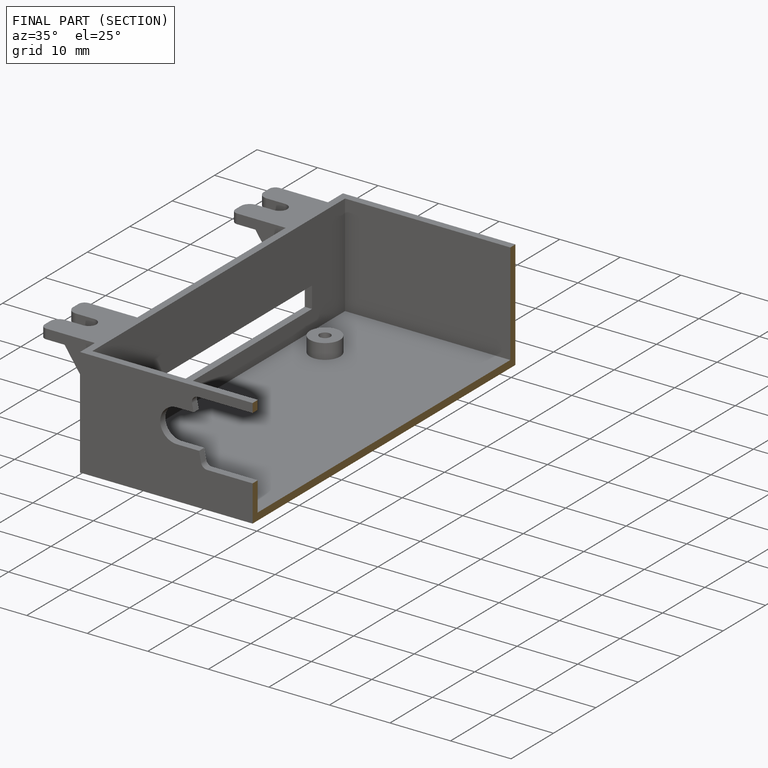
[diagram: finished part — half-section view (interior)]
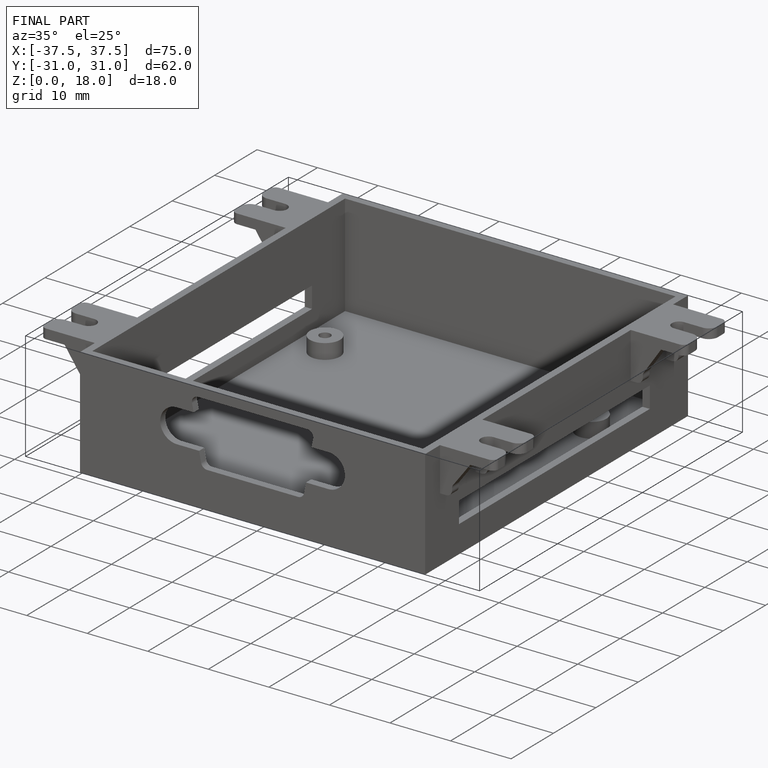
[diagram: finished part — iso view with bounding-box wireframe]
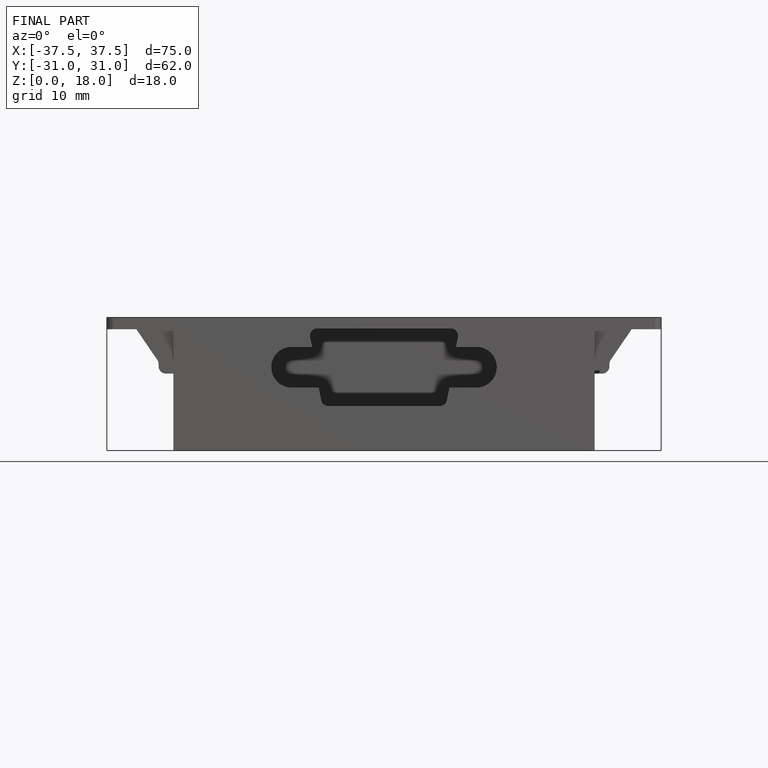
[diagram: finished part — front view with bounding-box wireframe]
